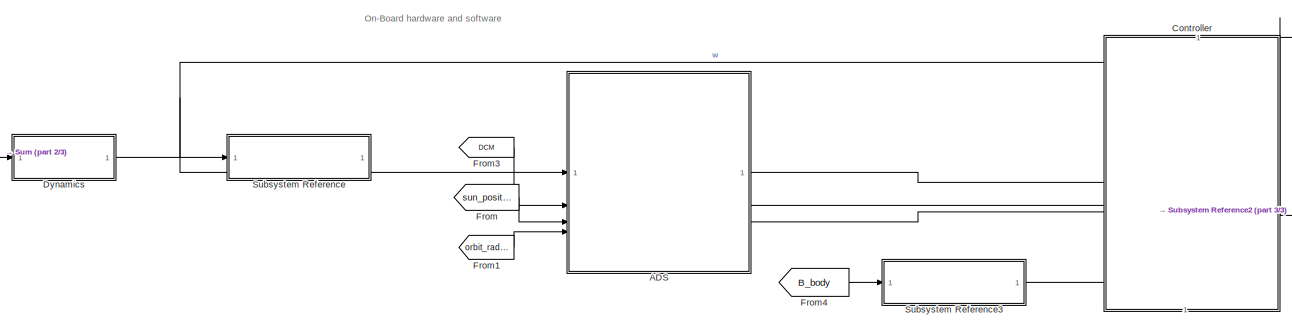
[diagram: root canvas - part 1/3, center side, full height]
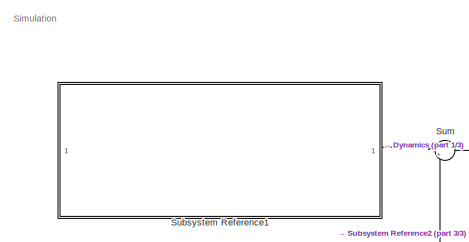
[diagram: root canvas - part 2/3, middle left region]
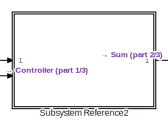
[diagram: root canvas - part 3/3, middle right region]
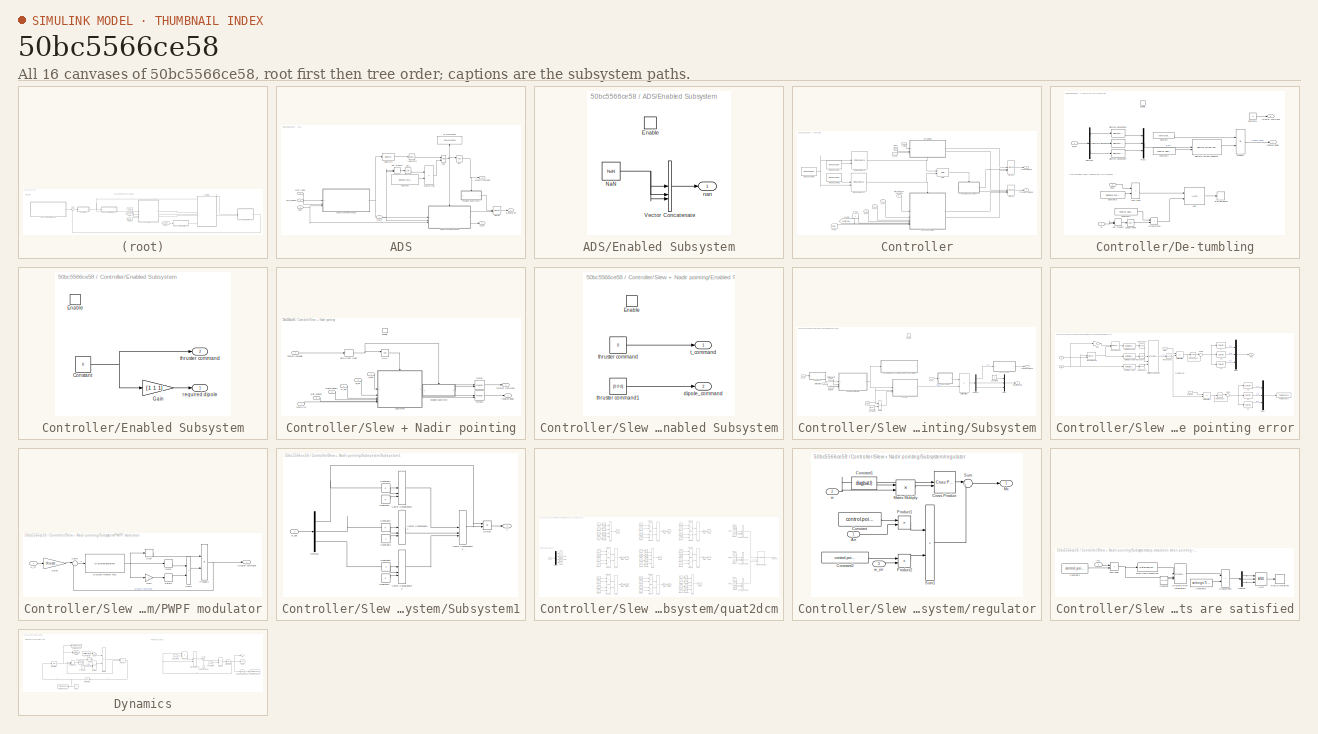
[diagram: thumbnail index - all 16 canvases of the model, root first then tree order]
MODEL slx_50bc5566ce58
KIND model
CONFIG AbsTol = auto
CONFIG EnableMultiTasking = off
CONFIG FixedStep = 0.01
CONFIG MaxStep = auto
CONFIG MinStep = auto
CONFIG RelTol = 1e-3
CONFIG SampleTimeConstraint = Unconstrained
CONFIG SolverName = VariableStepAuto
CONFIG StartTime = 0.0
CONFIG StopTime = Simtime
BLOCK [SubSystem] ADS
  SystemSampleTime = 1/sensors.star.frequency
  TreatAsAtomicUnit = on
BLOCK [Logic] ADS/AND
  AllPortsSameDT = off
  IconShape = distinctive
  OutDataTypeStr = boolean
BLOCK [Constant] ADS/Constant
  Value = sensors.star.reduced_perf_w
BLOCK [Inport] ADS/DCM
  Port = 2
BLOCK [DotProduct] ADS/Dot Product
  OutDataTypeStr = Inherit: Inherit via internal rule
BLOCK [SubSystem] ADS/Enabled Subsystem
  TreatAsAtomicUnit = on
BLOCK [EnablePort] ADS/Enabled Subsystem/Enable
BLOCK [Constant] ADS/Enabled Subsystem/NaN
  OutDataTypeStr = Inherit: Inherit via back propagation
  Value = NaN
BLOCK [Concatenate] ADS/Enabled Subsystem/Vector Concatenate
  NumInputs = 3
BLOCK [Outport] ADS/Enabled Subsystem/nan
BLOCK [RelationalOperator] ADS/GreaterThan
  InputSameDT = off
  Operator = <
  OutDataTypeStr = boolean
  RndMeth = Simplest
BLOCK [Reference] ADS/IsNotZero  REF=simulink/Logic and Bit
Operations/Compare
To Zero
  LibrarySourceBlock = simulink/Quick Insert/Logic and Bit\nOperations/IsZero
  NameLocation = top
  SourceBlock = simulink/Logic and Bit\nOperations/Compare\nTo Zero
  SourceType = Compare To Zero
BLOCK [Merge] ADS/Merge
BLOCK [Logic] ADS/NOT
  AllPortsSameDT = off
  IconShape = distinctive
  Operator = NOT
  OutDataTypeStr = boolean
BLOCK [Selector] ADS/Selector2
  IndexOptions = Index vector (dialog),Index vector (dialog)
  Indices = 1,1
  InputPortWidth = 9
  NumberOfDimensions = 2
  OutputSizes = 1,1
BLOCK [Sqrt] ADS/Sqrt
BLOCK [SubSystem] ADS/Subsystem Reference
  ReferencedSubsystem = Attitude_Determination
BLOCK [SubSystem] ADS/Subsystem Reference2
  ReferencedSubsystem = Choose_starTracker
BLOCK [Inport] ADS/Sun_position
  Port = 3
BLOCK [ToWorkspace] ADS/To Workspace
  FixptAsFi = on
  MaxDataPoints = inf
  NameLocation = right
  SampleTime = -1
  SaveFormat = Timeseries
  VariableName = sensors_status
BLOCK [Inport] ADS/orbit radius
  Port = 4
BLOCK [Outport] ADS/q_est
  Port = 2
BLOCK [Inport] ADS/real_w
BLOCK [Outport] ADS/sensors unusable
  Port = 3
BLOCK [Outport] ADS/w_measured
BLOCK [SubSystem] Controller
  NameLocation = top
  PortSchema = {"entries":[{"content":{"sides":[{"content":{"connectorIds":[]},"type":"ConnectorPlacement.EquallySpacedRectSide","uuid":"b9f306a8-2adc-4fdf-9d44-92990535016c"},{"content":{"connectorIds":[],"side":"RIGHT"},"type":"ConnectorPlacement.EquallySpacedRectSide","uuid":"ea1ad8ad-5997-4d6b-bfe5-c01ec1c38360"},{"content":{"connectorIds":["In1","In2","In3","In4","In5"],"side":"TOP"},"type":"ConnectorPlacem...<+415ch>
BLOCK [Inport] Controller/B_est
BLOCK [InportShadow] Controller/B_est1
BLOCK [Clock] Controller/Clock
BLOCK [SubSystem] Controller/De-tumbling
  NameLocation = top
  TreatAsAtomicUnit = on
BLOCK [Logic] Controller/De-tumbling/AND
  AllPortsSameDT = off
  IconShape = distinctive
  OutDataTypeStr = boolean
BLOCK [Inport] Controller/De-tumbling/B_est
  Port = 3
BLOCK [Constant] Controller/De-tumbling/Constant
  Value = -control.bdot_gain
BLOCK [Constant] Controller/De-tumbling/Constant1
  Value = 0
BLOCK [Constant] Controller/De-tumbling/Constant2
  SampleTime = -1
  Value = control.bdot_filter
BLOCK [Constant] Controller/De-tumbling/Constant3
  Value = sensors.star.startup
BLOCK [Constant] Controller/De-tumbling/Constant4
  Value = control.bdot_end
BLOCK [Demux] Controller/De-tumbling/Demux5
  Outputs = 3
BLOCK [Reference] Controller/De-tumbling/Discrete Derivative2  REF=simulink/Discrete/Discrete Derivative
  SourceBlock = simulink/Discrete/Discrete Derivative
  SourceType = Discrete Derivative
BLOCK [Reference] Controller/De-tumbling/Discrete Derivative3  REF=simulink/Discrete/Discrete Derivative
  SourceBlock = simulink/Discrete/Discrete Derivative
  SourceType = Discrete Derivative
BLOCK [Reference] Controller/De-tumbling/Discrete Derivative4  REF=simulink/Discrete/Discrete Derivative
  SourceBlock = simulink/Discrete/Discrete Derivative
  SourceType = Discrete Derivative
BLOCK [Reference] Controller/De-tumbling/Discrete Varying Lowpass1  REF=cstblocks/Linear Parameter Varying/Discrete Varying Lowpass
  SourceBlock = cstblocks/Linear Parameter Varying/Discrete Varying Lowpass
  SourceType = Discrete Varying Lowpass
BLOCK [DotProduct] Controller/De-tumbling/Dot Product
  OutDataTypeStr = Inherit: Inherit via internal rule
BLOCK [EnablePort] Controller/De-tumbling/Enable
BLOCK [RelationalOperator] Controller/De-tumbling/GreaterThan
  InputSameDT = off
  Operator = >
  OutDataTypeStr = boolean
  RndMeth = Simplest
BLOCK [RelationalOperator] Controller/De-tumbling/Less Than
  InputSameDT = off
  Operator = >
  OutDataTypeStr = boolean
  RndMeth = Simplest
BLOCK [Mux] Controller/De-tumbling/Mux1
  DisplayOption = bar
  Inputs = 3
BLOCK [Product] Controller/De-tumbling/Product
BLOCK [Sqrt] Controller/De-tumbling/Square Root
BLOCK [Stop] Controller/De-tumbling/Stop Simulation
BLOCK [Inport] Controller/De-tumbling/clock
  Port = 2
BLOCK [Outport] Controller/De-tumbling/required dipole
BLOCK [Outport] Controller/De-tumbling/thruster command
  Port = 2
BLOCK [Inport] Controller/De-tumbling/w
BLOCK [SubSystem] Controller/Enabled Subsystem
  TreatAsAtomicUnit = on
BLOCK [Constant] Controller/Enabled Subsystem/Constant
  Value = 0
BLOCK [EnablePort] Controller/Enabled Subsystem/Enable
BLOCK [Gain] Controller/Enabled Subsystem/Gain
  Gain = [1 1 1]
BLOCK [Outport] Controller/Enabled Subsystem/required dipole
BLOCK [Outport] Controller/Enabled Subsystem/thruster command
  Port = 2
BLOCK [From] Controller/From
  GotoTag = DCM
  TagVisibility = global
BLOCK [From] Controller/From2
  GotoTag = v
  TagVisibility = global
BLOCK [From] Controller/From3
  GotoTag = orbit_radius
  TagVisibility = global
BLOCK [Merge] Controller/Merge
  Inputs = 3
BLOCK [Merge] Controller/Merge1
  Inputs = 3
BLOCK [Logic] Controller/NOR
  AllPortsSameDT = off
  IconShape = distinctive
  Operator = NOR
  OutDataTypeStr = boolean
BLOCK [SubSystem] Controller/Slew + Nadir pointing
BLOCK [Inport] Controller/Slew + Nadir pointing/B_est
  Port = 3
BLOCK [EnablePort] Controller/Slew + Nadir pointing/Enable
BLOCK [SubSystem] Controller/Slew + Nadir pointing/Enabled Subsystem
  TreatAsAtomicUnit = on
BLOCK [EnablePort] Controller/Slew + Nadir pointing/Enabled Subsystem/Enable
BLOCK [Outport] Controller/Slew + Nadir pointing/Enabled Subsystem/dipole_command
  Port = 2
BLOCK [Outport] Controller/Slew + Nadir pointing/Enabled Subsystem/t_command
BLOCK [Constant] Controller/Slew + Nadir pointing/Enabled Subsystem/thruster command
  Value = 0
BLOCK [Constant] Controller/Slew + Nadir pointing/Enabled Subsystem/thruster command1
  Value = [0 0 0]
BLOCK [Merge] Controller/Slew + Nadir pointing/Merge
BLOCK [Merge] Controller/Slew + Nadir pointing/Merge1
BLOCK [Logic] Controller/Slew + Nadir pointing/NOT
  AllPortsSameDT = off
  IconShape = distinctive
  Operator = NOT
  OutDataTypeStr = boolean
BLOCK [SubSystem] Controller/Slew + Nadir pointing/Subsystem
BLOCK [Outport] Controller/Slew + Nadir pointing/Subsystem/Actuator command
BLOCK [Inport] Controller/Slew + Nadir pointing/Subsystem/B_est
  Port = 2
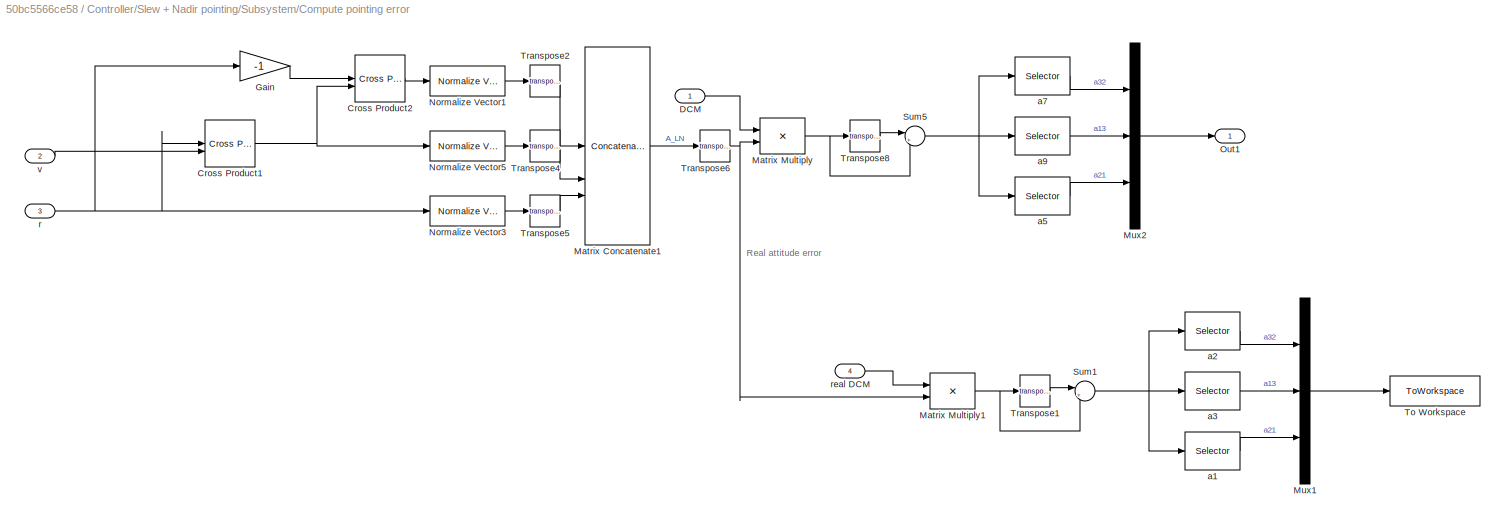
BLOCK [SubSystem] Controller/Slew + Nadir pointing/Subsystem/Compute pointing error
  SystemSampleTime = 1/control.frequency
  TreatAsAtomicUnit = on
BLOCK [Reference] Controller/Slew + Nadir pointing/Subsystem/Compute pointing error/Cross Product1  REF=matrix_library/Cross Product
  LibrarySourceBlock = simulink/Matrix\nOperations/Cross Product
  SourceBlock = matrix_library/Cross Product
  SourceType = CrossProduct
BLOCK [Reference] Controller/Slew + Nadir pointing/Subsystem/Compute pointing error/Cross Product2  REF=matrix_library/Cross Product
  LibrarySourceBlock = simulink/Matrix\nOperations/Cross Product
  SourceBlock = matrix_library/Cross Product
  SourceType = CrossProduct
BLOCK [Inport] Controller/Slew + Nadir pointing/Subsystem/Compute pointing error/DCM
  NameLocation = top
BLOCK [Gain] Controller/Slew + Nadir pointing/Subsystem/Compute pointing error/Gain
  Gain = -1
BLOCK [Concatenate] Controller/Slew + Nadir pointing/Subsystem/Compute pointing error/Matrix Concatenate1
  Mode = Multidimensional array
  NumInputs = 3
BLOCK [Product] Controller/Slew + Nadir pointing/Subsystem/Compute pointing error/Matrix Multiply
  Multiplication = Matrix(*)
BLOCK [Product] Controller/Slew + Nadir pointing/Subsystem/Compute pointing error/Matrix Multiply1
  Multiplication = Matrix(*)
BLOCK [Mux] Controller/Slew + Nadir pointing/Subsystem/Compute pointing error/Mux1
  DisplayOption = bar
  Inputs = 3
BLOCK [Mux] Controller/Slew + Nadir pointing/Subsystem/Compute pointing error/Mux2
  DisplayOption = bar
  Inputs = 3
BLOCK [Reference] Controller/Slew + Nadir pointing/Subsystem/Compute pointing error/Normalize Vector1  REF=vrlib/Utilities/Normalize Vector
  SourceBlock = vrlib/Utilities/Normalize Vector
  SourceType = Normalize Vector
BLOCK [Reference] Controller/Slew + Nadir pointing/Subsystem/Compute pointing error/Normalize Vector3  REF=vrlib/Utilities/Normalize Vector
  SourceBlock = vrlib/Utilities/Normalize Vector
  SourceType = Normalize Vector
BLOCK [Reference] Controller/Slew + Nadir pointing/Subsystem/Compute pointing error/Normalize Vector5  REF=vrlib/Utilities/Normalize Vector
  SourceBlock = vrlib/Utilities/Normalize Vector
  SourceType = Normalize Vector
BLOCK [Outport] Controller/Slew + Nadir pointing/Subsystem/Compute pointing error/Out1
BLOCK [Sum] Controller/Slew + Nadir pointing/Subsystem/Compute pointing error/Sum1
  Inputs = |+-
BLOCK [Sum] Controller/Slew + Nadir pointing/Subsystem/Compute pointing error/Sum5
  Inputs = |+-
BLOCK [ToWorkspace] Controller/Slew + Nadir pointing/Subsystem/Compute pointing error/To Workspace
  FixptAsFi = on
  MaxDataPoints = inf
  SampleTime = -1
  Save2DSignal = 2-D array (concatenate along first dimension)
  SaveFormat = Timeseries
  VariableName = Pointing_error
BLOCK [Math] Controller/Slew + Nadir pointing/Subsystem/Compute pointing error/Transpose1
  Operator = transpose
BLOCK [Math] Controller/Slew + Nadir pointing/Subsystem/Compute pointing error/Transpose2
  Operator = transpose
BLOCK [Math] Controller/Slew + Nadir pointing/Subsystem/Compute pointing error/Transpose4
  Operator = transpose
BLOCK [Math] Controller/Slew + Nadir pointing/Subsystem/Compute pointing error/Transpose5
  Operator = transpose
BLOCK [Math] Controller/Slew + Nadir pointing/Subsystem/Compute pointing error/Transpose6
  Operator = transpose
BLOCK [Math] Controller/Slew + Nadir pointing/Subsystem/Compute pointing error/Transpose8
  Operator = transpose
BLOCK [Selector] Controller/Slew + Nadir pointing/Subsystem/Compute pointing error/a1
  IndexOptions = Index vector (dialog),Index vector (dialog)
  Indices = 2,1
  InputPortWidth = 3
  NumberOfDimensions = 2
  OutputSizes = 1,1
BLOCK [Selector] Controller/Slew + Nadir pointing/Subsystem/Compute pointing error/a2
  IndexOptions = Index vector (dialog),Index vector (dialog)
  Indices = 3,2
  InputPortWidth = 3
  NumberOfDimensions = 2
  OutputSizes = 1,1
BLOCK [Selector] Controller/Slew + Nadir pointing/Subsystem/Compute pointing error/a3
  IndexOptions = Index vector (dialog),Index vector (dialog)
  Indices = 1,3
  InputPortWidth = 3
  NumberOfDimensions = 2
  OutputSizes = 1,1
BLOCK [Selector] Controller/Slew + Nadir pointing/Subsystem/Compute pointing error/a5
  IndexOptions = Index vector (dialog),Index vector (dialog)
  Indices = 2,1
  InputPortWidth = 3
  NumberOfDimensions = 2
  OutputSizes = 1,1
BLOCK [Selector] Controller/Slew + Nadir pointing/Subsystem/Compute pointing error/a7
  IndexOptions = Index vector (dialog),Index vector (dialog)
  Indices = 3,2
  InputPortWidth = 3
  NumberOfDimensions = 2
  OutputSizes = 1,1
BLOCK [Selector] Controller/Slew + Nadir pointing/Subsystem/Compute pointing error/a9
  IndexOptions = Index vector (dialog),Index vector (dialog)
  Indices = 1,3
  InputPortWidth = 3
  NumberOfDimensions = 2
  OutputSizes = 1,1
BLOCK [Inport] Controller/Slew + Nadir pointing/Subsystem/Compute pointing error/r
  Port = 3
BLOCK [Inport] Controller/Slew + Nadir pointing/Subsystem/Compute pointing error/real DCM
  Port = 4
BLOCK [Inport] Controller/Slew + Nadir pointing/Subsystem/Compute pointing error/v
  Port = 2
BLOCK [Constant] Controller/Slew + Nadir pointing/Subsystem/Constant2
  Value = 0
BLOCK [Constant] Controller/Slew + Nadir pointing/Subsystem/Constant3
  Value = [0 n 0]
BLOCK [Demux] Controller/Slew + Nadir pointing/Subsystem/Demux2
  Outputs = 3
BLOCK [EnablePort] Controller/Slew + Nadir pointing/Subsystem/Enable
BLOCK [Product] Controller/Slew + Nadir pointing/Subsystem/Matrix Multiply1
  Multiplication = Matrix(*)
BLOCK [Mux] Controller/Slew + Nadir pointing/Subsystem/Mux1
  DisplayOption = bar
  Inputs = 3
BLOCK [SubSystem] Controller/Slew + Nadir pointing/Subsystem/PWPF modulator
  SystemSampleTime = 1/control.frequency
  TreatAsAtomicUnit = on
BLOCK [Outport] Controller/Slew + Nadir pointing/Subsystem/PWPF modulator/Actuator command
BLOCK [DiscreteTransferFcn] Controller/Slew + Nadir pointing/Subsystem/PWPF modulator/Discrete Transfer Fcn2
  Denominator = [thruster.T_m 1]
  InputPortMap = u0
  Numerator = thruster.K_m
  SampleTime = 0.05
BLOCK [Gain] Controller/Slew + Nadir pointing/Subsystem/PWPF modulator/Gain
  Gain = -1
BLOCK [Gain] Controller/Slew + Nadir pointing/Subsystem/PWPF modulator/Gain5
  Gain = thruster.K_e
BLOCK [Product] Controller/Slew + Nadir pointing/Subsystem/PWPF modulator/Product1
BLOCK [Relay] Controller/Slew + Nadir pointing/Subsystem/PWPF modulator/Relay
  OffSwitchValue = thruster.Uoff
  OnSwitchValue = thruster.Uon
BLOCK [Relay] Controller/Slew + Nadir pointing/Subsystem/PWPF modulator/Relay1
  OffSwitchValue = thruster.Uoff
  OnSwitchValue = thruster.Uon
BLOCK [Signum] Controller/Slew + Nadir pointing/Subsystem/PWPF modulator/Sign
BLOCK [Sum] Controller/Slew + Nadir pointing/Subsystem/PWPF modulator/Sum3
  IconShape = rectangular
BLOCK [Sum] Controller/Slew + Nadir pointing/Subsystem/PWPF modulator/Sum4
  Inputs = |+-
BLOCK [Inport] Controller/Slew + Nadir pointing/Subsystem/PWPF modulator/U_in
BLOCK [SubSystem] Controller/Slew + Nadir pointing/Subsystem/Subsystem1
  SystemSampleTime = 1/control.frequency
  TreatAsAtomicUnit = on
BLOCK [Outport] Controller/Slew + Nadir pointing/Subsystem/Subsystem1/A
BLOCK [Inport] Controller/Slew + Nadir pointing/Subsystem/Subsystem1/B_est
BLOCK [Constant] Controller/Slew + Nadir pointing/Subsystem/Subsystem1/Constant1
  Value = 0
BLOCK [Constant] Controller/Slew + Nadir pointing/Subsystem/Subsystem1/Constant2
  Value = 0
BLOCK [Constant] Controller/Slew + Nadir pointing/Subsystem/Subsystem1/Constant3
BLOCK [Constant] Controller/Slew + Nadir pointing/Subsystem/Subsystem1/Constant4
  Value = 0
BLOCK [Constant] Controller/Slew + Nadir pointing/Subsystem/Subsystem1/Constant5
  Value = -1
BLOCK [Constant] Controller/Slew + Nadir pointing/Subsystem/Subsystem1/Constant6
  Value = 0
BLOCK [Demux] Controller/Slew + Nadir pointing/Subsystem/Subsystem1/Demux2
  Outputs = 3
BLOCK [Product] Controller/Slew + Nadir pointing/Subsystem/Subsystem1/Divide
  Inputs = /*
BLOCK [Concatenate] Controller/Slew + Nadir pointing/Subsystem/Subsystem1/Vector Concatenate1
  Mode = Multidimensional array
  NumInputs = 3
BLOCK [Concatenate] Controller/Slew + Nadir pointing/Subsystem/Subsystem1/Vector Concatenate2
  Mode = Multidimensional array
  NumInputs = 3
BLOCK [Concatenate] Controller/Slew + Nadir pointing/Subsystem/Subsystem1/Vector Concatenate3
  ConcatenateDimension = 2
  Mode = Multidimensional array
  NumInputs = 3
BLOCK [Concatenate] Controller/Slew + Nadir pointing/Subsystem/Subsystem1/Vector Concatenate4
  Mode = Multidimensional array
  NumInputs = 3
BLOCK [Sum] Controller/Slew + Nadir pointing/Subsystem/Sum2
  IconShape = rectangular
  Inputs = -+
BLOCK [Inport] Controller/Slew + Nadir pointing/Subsystem/orbit position
  Port = 5
BLOCK [Inport] Controller/Slew + Nadir pointing/Subsystem/orbital velocity
  Port = 4
BLOCK [Inport] Controller/Slew + Nadir pointing/Subsystem/q_est
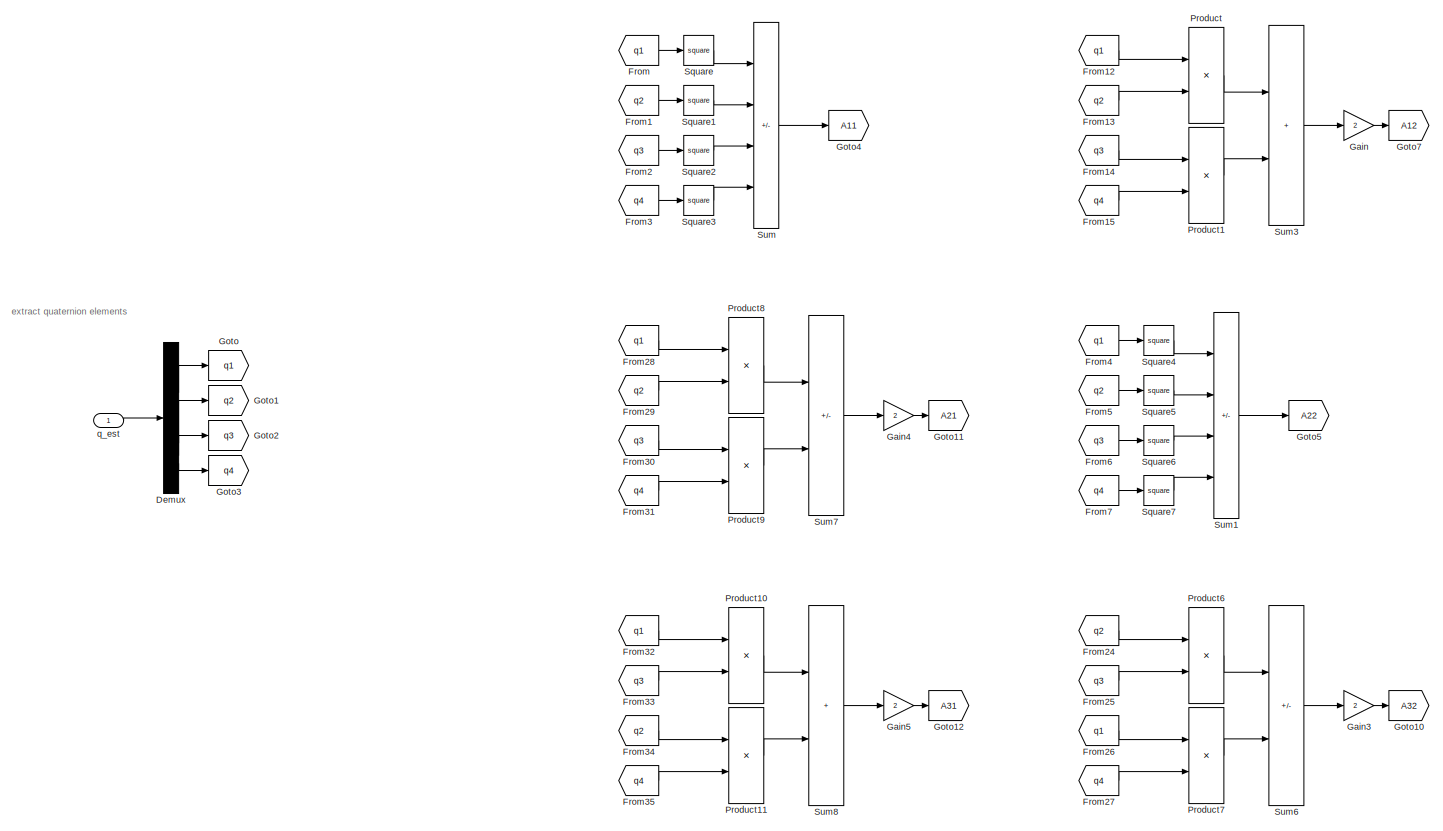
[diagram: Controller/Slew + Nadir pointing/Subsystem/quat2dcm - part 1/2, left side, full height]
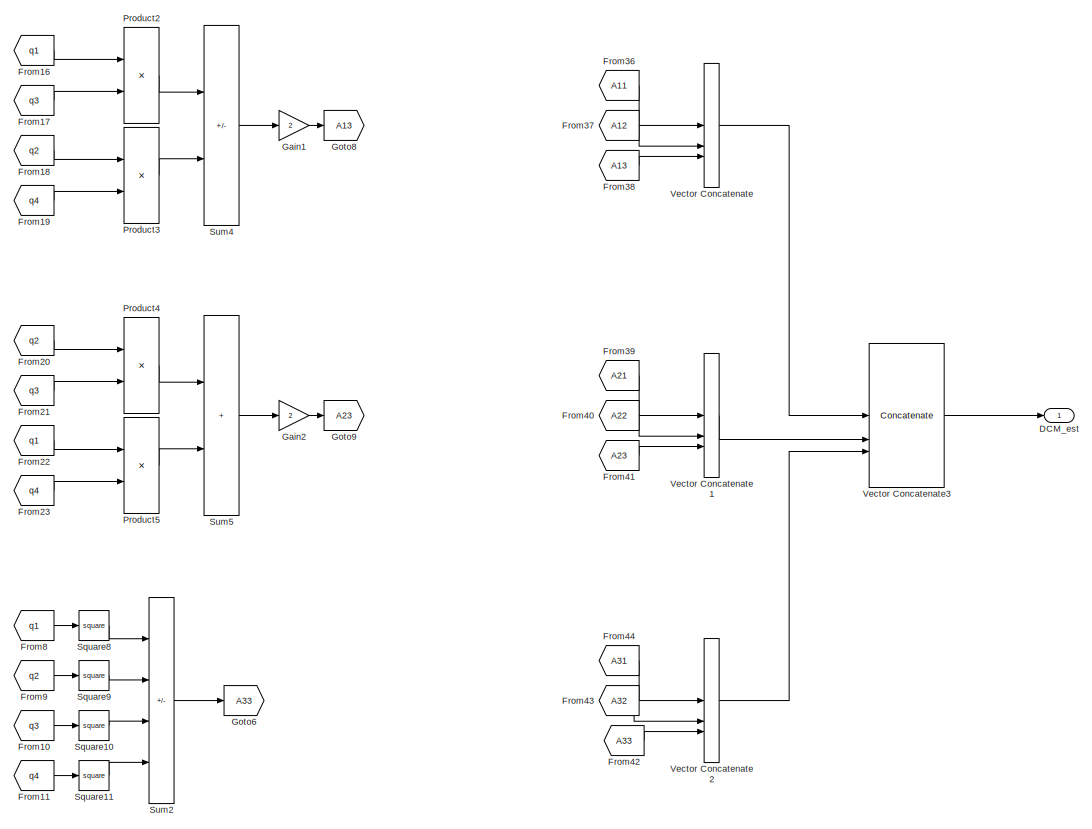
[diagram: Controller/Slew + Nadir pointing/Subsystem/quat2dcm - part 2/2, right side, full height]
BLOCK [SubSystem] Controller/Slew + Nadir pointing/Subsystem/quat2dcm
BLOCK [Outport] Controller/Slew + Nadir pointing/Subsystem/quat2dcm/DCM_est
BLOCK [Demux] Controller/Slew + Nadir pointing/Subsystem/quat2dcm/Demux
BLOCK [From] Controller/Slew + Nadir pointing/Subsystem/quat2dcm/From
  GotoTag = q1
BLOCK [From] Controller/Slew + Nadir pointing/Subsystem/quat2dcm/From1
  GotoTag = q2
BLOCK [From] Controller/Slew + Nadir pointing/Subsystem/quat2dcm/From10
  GotoTag = q3
BLOCK [From] Controller/Slew + Nadir pointing/Subsystem/quat2dcm/From11
  GotoTag = q4
BLOCK [From] Controller/Slew + Nadir pointing/Subsystem/quat2dcm/From12
  GotoTag = q1
BLOCK [From] Controller/Slew + Nadir pointing/Subsystem/quat2dcm/From13
  GotoTag = q2
BLOCK [From] Controller/Slew + Nadir pointing/Subsystem/quat2dcm/From14
  GotoTag = q3
BLOCK [From] Controller/Slew + Nadir pointing/Subsystem/quat2dcm/From15
  GotoTag = q4
BLOCK [From] Controller/Slew + Nadir pointing/Subsystem/quat2dcm/From16
  GotoTag = q1
BLOCK [From] Controller/Slew + Nadir pointing/Subsystem/quat2dcm/From17
  GotoTag = q3
BLOCK [From] Controller/Slew + Nadir pointing/Subsystem/quat2dcm/From18
  GotoTag = q2
BLOCK [From] Controller/Slew + Nadir pointing/Subsystem/quat2dcm/From19
  GotoTag = q4
BLOCK [From] Controller/Slew + Nadir pointing/Subsystem/quat2dcm/From2
  GotoTag = q3
BLOCK [From] Controller/Slew + Nadir pointing/Subsystem/quat2dcm/From20
  GotoTag = q2
BLOCK [From] Controller/Slew + Nadir pointing/Subsystem/quat2dcm/From21
  GotoTag = q3
BLOCK [From] Controller/Slew + Nadir pointing/Subsystem/quat2dcm/From22
  GotoTag = q1
BLOCK [From] Controller/Slew + Nadir pointing/Subsystem/quat2dcm/From23
  GotoTag = q4
BLOCK [From] Controller/Slew + Nadir pointing/Subsystem/quat2dcm/From24
  GotoTag = q2
BLOCK [From] Controller/Slew + Nadir pointing/Subsystem/quat2dcm/From25
  GotoTag = q3
BLOCK [From] Controller/Slew + Nadir pointing/Subsystem/quat2dcm/From26
  GotoTag = q1
BLOCK [From] Controller/Slew + Nadir pointing/Subsystem/quat2dcm/From27
  GotoTag = q4
BLOCK [From] Controller/Slew + Nadir pointing/Subsystem/quat2dcm/From28
  GotoTag = q1
BLOCK [From] Controller/Slew + Nadir pointing/Subsystem/quat2dcm/From29
  GotoTag = q2
BLOCK [From] Controller/Slew + Nadir pointing/Subsystem/quat2dcm/From3
  GotoTag = q4
BLOCK [From] Controller/Slew + Nadir pointing/Subsystem/quat2dcm/From30
  GotoTag = q3
BLOCK [From] Controller/Slew + Nadir pointing/Subsystem/quat2dcm/From31
  GotoTag = q4
BLOCK [From] Controller/Slew + Nadir pointing/Subsystem/quat2dcm/From32
  GotoTag = q1
BLOCK [From] Controller/Slew + Nadir pointing/Subsystem/quat2dcm/From33
  GotoTag = q3
BLOCK [From] Controller/Slew + Nadir pointing/Subsystem/quat2dcm/From34
  GotoTag = q2
BLOCK [From] Controller/Slew + Nadir pointing/Subsystem/quat2dcm/From35
  GotoTag = q4
BLOCK [From] Controller/Slew + Nadir pointing/Subsystem/quat2dcm/From36
  GotoTag = A11
BLOCK [From] Controller/Slew + Nadir pointing/Subsystem/quat2dcm/From37
  GotoTag = A12
BLOCK [From] Controller/Slew + Nadir pointing/Subsystem/quat2dcm/From38
  GotoTag = A13
BLOCK [From] Controller/Slew + Nadir pointing/Subsystem/quat2dcm/From39
  GotoTag = A21
BLOCK [From] Controller/Slew + Nadir pointing/Subsystem/quat2dcm/From4
  GotoTag = q1
BLOCK [From] Controller/Slew + Nadir pointing/Subsystem/quat2dcm/From40
  GotoTag = A22
BLOCK [From] Controller/Slew + Nadir pointing/Subsystem/quat2dcm/From41
  GotoTag = A23
BLOCK [From] Controller/Slew + Nadir pointing/Subsystem/quat2dcm/From42
  GotoTag = A33
BLOCK [From] Controller/Slew + Nadir pointing/Subsystem/quat2dcm/From43
  GotoTag = A32
BLOCK [From] Controller/Slew + Nadir pointing/Subsystem/quat2dcm/From44
  GotoTag = A31
BLOCK [From] Controller/Slew + Nadir pointing/Subsystem/quat2dcm/From5
  GotoTag = q2
BLOCK [From] Controller/Slew + Nadir pointing/Subsystem/quat2dcm/From6
  GotoTag = q3
BLOCK [From] Controller/Slew + Nadir pointing/Subsystem/quat2dcm/From7
  GotoTag = q4
BLOCK [From] Controller/Slew + Nadir pointing/Subsystem/quat2dcm/From8
  GotoTag = q1
BLOCK [From] Controller/Slew + Nadir pointing/Subsystem/quat2dcm/From9
  GotoTag = q2
BLOCK [Gain] Controller/Slew + Nadir pointing/Subsystem/quat2dcm/Gain
  Gain = 2
BLOCK [Gain] Controller/Slew + Nadir pointing/Subsystem/quat2dcm/Gain1
  Gain = 2
BLOCK [Gain] Controller/Slew + Nadir pointing/Subsystem/quat2dcm/Gain2
  Gain = 2
BLOCK [Gain] Controller/Slew + Nadir pointing/Subsystem/quat2dcm/Gain3
  Gain = 2
BLOCK [Gain] Controller/Slew + Nadir pointing/Subsystem/quat2dcm/Gain4
  Gain = 2
BLOCK [Gain] Controller/Slew + Nadir pointing/Subsystem/quat2dcm/Gain5
  Gain = 2
BLOCK [Goto] Controller/Slew + Nadir pointing/Subsystem/quat2dcm/Goto
  GotoTag = q1
BLOCK [Goto] Controller/Slew + Nadir pointing/Subsystem/quat2dcm/Goto1
  GotoTag = q2
BLOCK [Goto] Controller/Slew + Nadir pointing/Subsystem/quat2dcm/Goto10
  GotoTag = A32
BLOCK [Goto] Controller/Slew + Nadir pointing/Subsystem/quat2dcm/Goto11
  GotoTag = A21
BLOCK [Goto] Controller/Slew + Nadir pointing/Subsystem/quat2dcm/Goto12
  GotoTag = A31
BLOCK [Goto] Controller/Slew + Nadir pointing/Subsystem/quat2dcm/Goto2
  GotoTag = q3
BLOCK [Goto] Controller/Slew + Nadir pointing/Subsystem/quat2dcm/Goto3
  GotoTag = q4
BLOCK [Goto] Controller/Slew + Nadir pointing/Subsystem/quat2dcm/Goto4
  GotoTag = A11
BLOCK [Goto] Controller/Slew + Nadir pointing/Subsystem/quat2dcm/Goto5
  GotoTag = A22
BLOCK [Goto] Controller/Slew + Nadir pointing/Subsystem/quat2dcm/Goto6
  GotoTag = A33
BLOCK [Goto] Controller/Slew + Nadir pointing/Subsystem/quat2dcm/Goto7
  GotoTag = A12
BLOCK [Goto] Controller/Slew + Nadir pointing/Subsystem/quat2dcm/Goto8
  GotoTag = A13
BLOCK [Goto] Controller/Slew + Nadir pointing/Subsystem/quat2dcm/Goto9
  GotoTag = A23
BLOCK [Product] Controller/Slew + Nadir pointing/Subsystem/quat2dcm/Product
BLOCK [Product] Controller/Slew + Nadir pointing/Subsystem/quat2dcm/Product1
BLOCK [Product] Controller/Slew + Nadir pointing/Subsystem/quat2dcm/Product10
BLOCK [Product] Controller/Slew + Nadir pointing/Subsystem/quat2dcm/Product11
BLOCK [Product] Controller/Slew + Nadir pointing/Subsystem/quat2dcm/Product2
BLOCK [Product] Controller/Slew + Nadir pointing/Subsystem/quat2dcm/Product3
BLOCK [Product] Controller/Slew + Nadir pointing/Subsystem/quat2dcm/Product4
BLOCK [Product] Controller/Slew + Nadir pointing/Subsystem/quat2dcm/Product5
BLOCK [Product] Controller/Slew + Nadir pointing/Subsystem/quat2dcm/Product6
BLOCK [Product] Controller/Slew + Nadir pointing/Subsystem/quat2dcm/Product7
BLOCK [Product] Controller/Slew + Nadir pointing/Subsystem/quat2dcm/Product8
BLOCK [Product] Controller/Slew + Nadir pointing/Subsystem/quat2dcm/Product9
BLOCK [Math] Controller/Slew + Nadir pointing/Subsystem/quat2dcm/Square
  Operator = square
BLOCK [Math] Controller/Slew + Nadir pointing/Subsystem/quat2dcm/Square1
  Operator = square
BLOCK [Math] Controller/Slew + Nadir pointing/Subsystem/quat2dcm/Square10
  Operator = square
BLOCK [Math] Controller/Slew + Nadir pointing/Subsystem/quat2dcm/Square11
  Operator = square
BLOCK [Math] Controller/Slew + Nadir pointing/Subsystem/quat2dcm/Square2
  Operator = square
BLOCK [Math] Controller/Slew + Nadir pointing/Subsystem/quat2dcm/Square3
  Operator = square
BLOCK [Math] Controller/Slew + Nadir pointing/Subsystem/quat2dcm/Square4
  Operator = square
BLOCK [Math] Controller/Slew + Nadir pointing/Subsystem/quat2dcm/Square5
  Operator = square
BLOCK [Math] Controller/Slew + Nadir pointing/Subsystem/quat2dcm/Square6
  Operator = square
BLOCK [Math] Controller/Slew + Nadir pointing/Subsystem/quat2dcm/Square7
  Operator = square
BLOCK [Math] Controller/Slew + Nadir pointing/Subsystem/quat2dcm/Square8
  Operator = square
BLOCK [Math] Controller/Slew + Nadir pointing/Subsystem/quat2dcm/Square9
  Operator = square
BLOCK [Sum] Controller/Slew + Nadir pointing/Subsystem/quat2dcm/Sum
  IconShape = rectangular
  Inputs = +--+
BLOCK [Sum] Controller/Slew + Nadir pointing/Subsystem/quat2dcm/Sum1
  IconShape = rectangular
  Inputs = -+-+
BLOCK [Sum] Controller/Slew + Nadir pointing/Subsystem/quat2dcm/Sum2
  IconShape = rectangular
  Inputs = --++
BLOCK [Sum] Controller/Slew + Nadir pointing/Subsystem/quat2dcm/Sum3
  IconShape = rectangular
BLOCK [Sum] Controller/Slew + Nadir pointing/Subsystem/quat2dcm/Sum4
  IconShape = rectangular
  Inputs = +-
BLOCK [Sum] Controller/Slew + Nadir pointing/Subsystem/quat2dcm/Sum5
  IconShape = rectangular
BLOCK [Sum] Controller/Slew + Nadir pointing/Subsystem/quat2dcm/Sum6
  IconShape = rectangular
  Inputs = +-
BLOCK [Sum] Controller/Slew + Nadir pointing/Subsystem/quat2dcm/Sum7
  IconShape = rectangular
  Inputs = +-
BLOCK [Sum] Controller/Slew + Nadir pointing/Subsystem/quat2dcm/Sum8
  IconShape = rectangular
BLOCK [Concatenate] Controller/Slew + Nadir pointing/Subsystem/quat2dcm/Vector Concatenate
  ConcatenateDimension = 2
  Mode = Multidimensional array
  NumInputs = 3
BLOCK [Concatenate] Controller/Slew + Nadir pointing/Subsystem/quat2dcm/Vector Concatenate1
  ConcatenateDimension = 2
  Mode = Multidimensional array
  NumInputs = 3
BLOCK [Concatenate] Controller/Slew + Nadir pointing/Subsystem/quat2dcm/Vector Concatenate2
  ConcatenateDimension = 2
  Mode = Multidimensional array
  NumInputs = 3
BLOCK [Concatenate] Controller/Slew + Nadir pointing/Subsystem/quat2dcm/Vector Concatenate3
  Mode = Multidimensional array
  NumInputs = 3
BLOCK [Inport] Controller/Slew + Nadir pointing/Subsystem/quat2dcm/q_est
BLOCK [Inport] Controller/Slew + Nadir pointing/Subsystem/real DCM
  Port = 6
BLOCK [SubSystem] Controller/Slew + Nadir pointing/Subsystem/regulator
  SystemSampleTime = 1
  TreatAsAtomicUnit = on
BLOCK [Inport] Controller/Slew + Nadir pointing/Subsystem/regulator/Ae
BLOCK [Constant] Controller/Slew + Nadir pointing/Subsystem/regulator/Constant
  Value = control.pointing_Kp
BLOCK [Constant] Controller/Slew + Nadir pointing/Subsystem/regulator/Constant1
  Value = diag(sat.I)
BLOCK [Constant] Controller/Slew + Nadir pointing/Subsystem/regulator/Constant2
  Value = control.pointing_Kd
BLOCK [Reference] Controller/Slew + Nadir pointing/Subsystem/regulator/Cross Product  REF=matrix_library/Cross Product
  LibrarySourceBlock = simulink/Matrix\nOperations/Cross Product
  SourceBlock = matrix_library/Cross Product
  SourceType = CrossProduct
BLOCK [Product] Controller/Slew + Nadir pointing/Subsystem/regulator/Matrix Multiply
  Multiplication = Matrix(*)
BLOCK [Outport] Controller/Slew + Nadir pointing/Subsystem/regulator/Mc
BLOCK [Product] Controller/Slew + Nadir pointing/Subsystem/regulator/Product1
BLOCK [Product] Controller/Slew + Nadir pointing/Subsystem/regulator/Product2
BLOCK [Sum] Controller/Slew + Nadir pointing/Subsystem/regulator/Sum
  Inputs = |++
BLOCK [Sum] Controller/Slew + Nadir pointing/Subsystem/regulator/Sum1
  IconShape = rectangular
BLOCK [Inport] Controller/Slew + Nadir pointing/Subsystem/regulator/w
  Port = 2
BLOCK [Inport] Controller/Slew + Nadir pointing/Subsystem/regulator/w_err
  Port = 3
BLOCK [Outport] Controller/Slew + Nadir pointing/Subsystem/required dipole
  Port = 2
BLOCK [SubSystem] Controller/Slew + Nadir pointing/Subsystem/stop simulation when pointing requirements are satisfied
  SystemSampleTime = 1/control.frequency
  TreatAsAtomicUnit = on
BLOCK [Logic] Controller/Slew + Nadir pointing/Subsystem/stop simulation when pointing requirements are satisfied/AND
  AllPortsSameDT = off
  IconShape = distinctive
  Inputs = 3
  OutDataTypeStr = boolean
BLOCK [Constant] Controller/Slew + Nadir pointing/Subsystem/stop simulation when pointing requirements are satisfied/Constant
  Value = [0 0 0]
BLOCK [Constant] Controller/Slew + Nadir pointing/Subsystem/stop simulation when pointing requirements are satisfied/Constant1
  Value = settings.Time
BLOCK [Constant] Controller/Slew + Nadir pointing/Subsystem/stop simulation when pointing requirements are satisfied/Constant2
  Value = control.pointing_toll
BLOCK [DataTypeConversion] Controller/Slew + Nadir pointing/Subsystem/stop simulation when pointing requirements are satisfied/Data Type Conversion
  OutDataTypeStr = double
  RndMeth = Floor
  SaturateOnIntegerOverflow = off
BLOCK [Demux] Controller/Slew + Nadir pointing/Subsystem/stop simulation when pointing requirements are satisfied/Demux
  Outputs = 3
BLOCK [DiscreteIntegrator] Controller/Slew + Nadir pointing/Subsystem/stop simulation when pointing requirements are satisfied/Discrete-Time Integrator2
  ExternalReset = either
  ICPrevOutput = DiscIntNeverNeededParam
  ICPrevScaledInput = DiscIntNeverNeededParam
  InitialConditionSetting = Auto
  InitialConditionSource = external
  SampleTime = -1
BLOCK [RelationalOperator] Controller/Slew + Nadir pointing/Subsystem/stop simulation when pointing requirements are satisfied/GreaterThan
  InputSameDT = off
  Operator = >
  OutDataTypeStr = boolean
  RndMeth = Simplest
BLOCK [Inport] Controller/Slew + Nadir pointing/Subsystem/stop simulation when pointing requirements are satisfied/In1
BLOCK [RelationalOperator] Controller/Slew + Nadir pointing/Subsystem/stop simulation when pointing requirements are satisfied/Less Than
  InputSameDT = off
  Operator = <
  OutDataTypeStr = boolean
  RndMeth = Simplest
BLOCK [Stop] Controller/Slew + Nadir pointing/Subsystem/stop simulation when pointing requirements are satisfied/Stop Simulation
BLOCK [Inport] Controller/Slew + Nadir pointing/Subsystem/w_est
  Port = 3
BLOCK [Outport] Controller/Slew + Nadir pointing/Thruster command
BLOCK [ZeroOrderHold] Controller/Slew + Nadir pointing/Zero-Order Hold1
  SampleTime = 1/control.frequency
BLOCK [Inport] Controller/Slew + Nadir pointing/orbit position
  Port = 6
BLOCK [Inport] Controller/Slew + Nadir pointing/orbital velocity
  Port = 5
BLOCK [Inport] Controller/Slew + Nadir pointing/q_est
  Port = 2
BLOCK [Inport] Controller/Slew + Nadir pointing/real DCM
  Port = 7
BLOCK [Outport] Controller/Slew + Nadir pointing/required dipole
  Port = 2
BLOCK [Inport] Controller/Slew + Nadir pointing/sensors unusable
BLOCK [Inport] Controller/Slew + Nadir pointing/w_est
  Port = 4
BLOCK [StringCompare] Controller/String Compare
BLOCK [StringCompare] Controller/String Compare1
BLOCK [StringConstant] Controller/String Constant
  String = 'De-tumbling'
BLOCK [StringConstant] Controller/String Constant1
  String = 'Pointing'
BLOCK [StringConstant] Controller/String Constant2
  String = control.algorithm
BLOCK [Outport] Controller/Thruster command
  Port = 2
BLOCK [Inport] Controller/q_est
  Port = 3
BLOCK [Inport] Controller/real w
  Port = 5
BLOCK [Outport] Controller/required dipole
BLOCK [Inport] Controller/star sensors unusable
  Port = 2
BLOCK [Inport] Controller/w_est
  Port = 4
BLOCK [SubSystem] Dynamics
BLOCK [Constant] Dynamics/Constant
  Value = 3
BLOCK [Constant] Dynamics/Constant1
  Value = settings.mu
BLOCK [Constant] Dynamics/Constant2
  Value = sat.I
BLOCK [Constant] Dynamics/Constant5
  Value = sat.I
BLOCK [Reference] Dynamics/Cross Product  REF=matrix_library/Cross Product
  LibrarySourceBlock = simulink/Matrix\nOperations/Cross Product
  SourceBlock = matrix_library/Cross Product
  SourceType = CrossProduct
BLOCK [Product] Dynamics/Divide
  Inputs = */
BLOCK [Product] Dynamics/Divide1
  Inputs = */
BLOCK [DotProduct] Dynamics/Dot Product
  OutDataTypeStr = Inherit: Inherit via internal rule
BLOCK [Inport] Dynamics/External Torque
  NameLocation = right
BLOCK [Gain] Dynamics/Gain
  Gain = -1
BLOCK [Goto] Dynamics/Goto
  GotoTag = orbit_radius
  TagVisibility = global
BLOCK [Goto] Dynamics/Goto1
  GotoTag = w
  TagVisibility = global
BLOCK [Goto] Dynamics/Goto2
  GotoTag = r_norm
  TagVisibility = global
BLOCK [Goto] Dynamics/Goto3
  GotoTag = v
  TagVisibility = global
BLOCK [Integrator] Dynamics/Integrator
  InitialCondition = r0
BLOCK [Integrator] Dynamics/Integrator1
  InitialCondition = v0
  NameLocation = top
BLOCK [Integrator] Dynamics/Integrator2
  InitialCondition = settings.w0
BLOCK [Math] Dynamics/Power
  Operator = pow
BLOCK [Product] Dynamics/Product
BLOCK [Product] Dynamics/Product6
BLOCK [Reference] Dynamics/Radians to Degrees  REF=simulink_extras/Transformations/Radians
to Degrees
  SourceBlock = simulink_extras/Transformations/Radians\nto Degrees
  SourceType = RadiansToDegrees
BLOCK [Sqrt] Dynamics/Square Root
BLOCK [Sum] Dynamics/Sum
  Inputs = |++
BLOCK [ToWorkspace] Dynamics/To Workspace
  FixptAsFi = on
  MaxDataPoints = inf
  SampleTime = -1
  VariableName = r_N
BLOCK [ToWorkspace] Dynamics/To Workspace1
  FixptAsFi = on
  MaxDataPoints = inf
  SampleTime = -1
  VariableName = w_BN
BLOCK [ToWorkspace] Dynamics/To Workspace2
  FixptAsFi = on
  MaxDataPoints = inf
  NameLocation = top
  SampleTime = -1
  VariableName = v
BLOCK [Outport] Dynamics/w
BLOCK [From] From
  GotoTag = sun_position
  TagVisibility = global
BLOCK [From] From1
  GotoTag = orbit_radius
  TagVisibility = global
BLOCK [From] From3
  GotoTag = DCM
  TagVisibility = global
BLOCK [From] From4
  GotoTag = B_body
  TagVisibility = global
BLOCK [SubSystem] Subsystem Reference
  ReferencedSubsystem = Kinematics
BLOCK [SubSystem] Subsystem Reference1
  ReferencedSubsystem = Enviroment
BLOCK [SubSystem] Subsystem Reference2
  ReferencedSubsystem = actuators
BLOCK [SubSystem] Subsystem Reference3
  ReferencedSubsystem = magnetic_sensor
  SystemSampleTime = 1/sensors.mag.frequency
  TreatAsAtomicUnit = on
BLOCK [Sum] Sum
  Inputs = |++
ANNOTATION (root): On-Board hardware and software
ANNOTATION (root): Simulation
ANNOTATION Controller/De-tumbling: stop simulation when requirements are satisfied
ANNOTATION Controller/Slew + Nadir pointing/Subsystem/Compute pointing error: Real attitude error
ANNOTATION Controller/Slew + Nadir pointing/Subsystem/quat2dcm: extract quaternion elements
ANNOTATION Dynamics: Orbit in Earth-centered inertial system
ANNOTATION Dynamics: Rotational Dynamics
NET ADS/AND:1 -> ADS/NOT:1, ADS/Subsystem Reference:enable, ADS/To Workspace:1
LINE ADS/Constant:1 -> ADS/GreaterThan:2
NET ADS/DCM:1 -> ADS/Subsystem Reference2:3, ADS/Subsystem Reference:3
LINE ADS/Dot Product:1 -> ADS/Sqrt:1
NET ADS/Enabled Subsystem/NaN:1 -> ADS/Enabled Subsystem/Vector Concatenate:1, ADS/Enabled Subsystem/Vector Concatenate:2, ADS/Enabled Subsystem/Vector Concatenate:3
LINE ADS/Enabled Subsystem/Vector Concatenate:1 -> ADS/Enabled Subsystem/nan:1
LINE ADS/Enabled Subsystem:1 -> ADS/Merge:1
LINE ADS/GreaterThan:1 -> ADS/AND:2
LINE ADS/IsNotZero:1 -> ADS/AND:1
LINE ADS/Merge:1 -> ADS/w_measured:1
NET ADS/NOT:1 -> ADS/Enabled Subsystem:enable, ADS/sensors unusable:1
LINE ADS/Selector2:1 -> ADS/IsNotZero:1
LINE ADS/Sqrt:1 -> ADS/GreaterThan:1
NET ADS/Subsystem Reference2:1 -> ADS/Selector2:1, ADS/Subsystem Reference:1
LINE ADS/Subsystem Reference:1 -> ADS/Merge:2
LINE ADS/Subsystem Reference:2 -> ADS/q_est:1
LINE ADS/Sun_position:1 -> ADS/Subsystem Reference2:2
LINE ADS/orbit radius:1 -> ADS/Subsystem Reference2:1
NET ADS/real_w:1 -> ADS/Dot Product:1, ADS/Dot Product:2, ADS/Subsystem Reference:2
LINE ADS:1 -> Controller:4
LINE ADS:2 -> Controller:3
LINE ADS:3 -> Controller:2
LINE Controller/B_est1:1 -> Controller/De-tumbling:3
LINE Controller/B_est:1 -> Controller/Slew + Nadir pointing:3
LINE Controller/Clock:1 -> Controller/De-tumbling:2
LINE Controller/De-tumbling/AND:1 -> Controller/De-tumbling/Stop Simulation:1
LINE Controller/De-tumbling/B_est:1 -> Controller/De-tumbling/Demux5:1
LINE Controller/De-tumbling/Constant1:1 -> Controller/De-tumbling/thruster command:1
LINE Controller/De-tumbling/Constant2:1 -> Controller/De-tumbling/Discrete Varying Lowpass1:2
LINE Controller/De-tumbling/Constant3:1 -> Controller/De-tumbling/Less Than:2
LINE Controller/De-tumbling/Constant4:1 -> Controller/De-tumbling/GreaterThan:1
LINE Controller/De-tumbling/Constant:1 -> Controller/De-tumbling/Product:1
LINE Controller/De-tumbling/Demux5:1 -> Controller/De-tumbling/Discrete Derivative2:1
LINE Controller/De-tumbling/Demux5:2 -> Controller/De-tumbling/Discrete Derivative3:1
LINE Controller/De-tumbling/Demux5:3 -> Controller/De-tumbling/Discrete Derivative4:1
LINE Controller/De-tumbling/Discrete Derivative2:1 -> Controller/De-tumbling/Mux1:1
LINE Controller/De-tumbling/Discrete Derivative3:1 -> Controller/De-tumbling/Mux1:2
LINE Controller/De-tumbling/Discrete Derivative4:1 -> Controller/De-tumbling/Mux1:3
LINE Controller/De-tumbling/Discrete Varying Lowpass1:1 -> Controller/De-tumbling/Product:2
LINE Controller/De-tumbling/Dot Product:1 -> Controller/De-tumbling/Square Root:1
LINE Controller/De-tumbling/GreaterThan:1 -> Controller/De-tumbling/AND:2
LINE Controller/De-tumbling/Less Than:1 -> Controller/De-tumbling/AND:1
LINE Controller/De-tumbling/Mux1:1 -> Controller/De-tumbling/Discrete Varying Lowpass1:1
LINE Controller/De-tumbling/Product:1 -> Controller/De-tumbling/required dipole:1
LINE Controller/De-tumbling/Square Root:1 -> Controller/De-tumbling/GreaterThan:2
LINE Controller/De-tumbling/clock:1 -> Controller/De-tumbling/Less Than:1
NET Controller/De-tumbling/w:1 -> Controller/De-tumbling/Dot Product:1, Controller/De-tumbling/Dot Product:2
LINE Controller/De-tumbling:1 -> Controller/Merge1:1
LINE Controller/De-tumbling:2 -> Controller/Merge:1
NET Controller/Enabled Subsystem/Constant:1 -> Controller/Enabled Subsystem/Gain:1, Controller/Enabled Subsystem/thruster command:1
LINE Controller/Enabled Subsystem/Gain:1 -> Controller/Enabled Subsystem/required dipole:1
LINE Controller/Enabled Subsystem:1 -> Controller/Merge1:2
LINE Controller/Enabled Subsystem:2 -> Controller/Merge:2
LINE Controller/From2:1 -> Controller/Slew + Nadir pointing:5
LINE Controller/From3:1 -> Controller/Slew + Nadir pointing:6
LINE Controller/From:1 -> Controller/Slew + Nadir pointing:7
LINE Controller/Merge1:1 -> Controller/required dipole:1
LINE Controller/Merge:1 -> Controller/Thruster command:1
LINE Controller/NOR:1 -> Controller/Enabled Subsystem:enable
LINE Controller/Slew + Nadir pointing/B_est:1 -> Controller/Slew + Nadir pointing/Subsystem:2
LINE Controller/Slew + Nadir pointing/Enabled Subsystem/thruster command1:1 -> Controller/Slew + Nadir pointing/Enabled Subsystem/dipole_command:1
LINE Controller/Slew + Nadir pointing/Enabled Subsystem/thruster command:1 -> Controller/Slew + Nadir pointing/Enabled Subsystem/t_command:1
LINE Controller/Slew + Nadir pointing/Enabled Subsystem:1 -> Controller/Slew + Nadir pointing/Merge:2
LINE Controller/Slew + Nadir pointing/Enabled Subsystem:2 -> Controller/Slew + Nadir pointing/Merge1:1
LINE Controller/Slew + Nadir pointing/Merge1:1 -> Controller/Slew + Nadir pointing/required dipole:1
LINE Controller/Slew + Nadir pointing/Merge:1 -> Controller/Slew + Nadir pointing/Thruster command:1
LINE Controller/Slew + Nadir pointing/NOT:1 -> Controller/Slew + Nadir pointing/Subsystem:enable
LINE Controller/Slew + Nadir pointing/Subsystem/B_est:1 -> Controller/Slew + Nadir pointing/Subsystem/Subsystem1:1
NET Controller/Slew + Nadir pointing/Subsystem/Compute pointing error/Cross Product1:1 -> Controller/Slew + Nadir pointing/Subsystem/Compute pointing error/Cross Product2:2, Controller/Slew + Nadir pointing/Subsystem/Compute pointing error/Normalize Vector5:1
LINE Controller/Slew + Nadir pointing/Subsystem/Compute pointing error/Cross Product2:1 -> Controller/Slew + Nadir pointing/Subsystem/Compute pointing error/Normalize Vector1:1
LINE Controller/Slew + Nadir pointing/Subsystem/Compute pointing error/DCM:1 -> Controller/Slew + Nadir pointing/Subsystem/Compute pointing error/Matrix Multiply:1
LINE Controller/Slew + Nadir pointing/Subsystem/Compute pointing error/Gain:1 -> Controller/Slew + Nadir pointing/Subsystem/Compute pointing error/Cross Product2:1
LINE Controller/Slew + Nadir pointing/Subsystem/Compute pointing error/Matrix Concatenate1:1 -> Controller/Slew + Nadir pointing/Subsystem/Compute pointing error/Transpose6:1
NET Controller/Slew + Nadir pointing/Subsystem/Compute pointing error/Matrix Multiply1:1 -> Controller/Slew + Nadir pointing/Subsystem/Compute pointing error/Sum1:2, Controller/Slew + Nadir pointing/Subsystem/Compute pointing error/Transpose1:1
NET Controller/Slew + Nadir pointing/Subsystem/Compute pointing error/Matrix Multiply:1 -> Controller/Slew + Nadir pointing/Subsystem/Compute pointing error/Sum5:2, Controller/Slew + Nadir pointing/Subsystem/Compute pointing error/Transpose8:1
LINE Controller/Slew + Nadir pointing/Subsystem/Compute pointing error/Mux1:1 -> Controller/Slew + Nadir pointing/Subsystem/Compute pointing error/To Workspace:1
LINE Controller/Slew + Nadir pointing/Subsystem/Compute pointing error/Mux2:1 -> Controller/Slew + Nadir pointing/Subsystem/Compute pointing error/Out1:1
LINE Controller/Slew + Nadir pointing/Subsystem/Compute pointing error/Normalize Vector1:1 -> Controller/Slew + Nadir pointing/Subsystem/Compute pointing error/Transpose2:1
LINE Controller/Slew + Nadir pointing/Subsystem/Compute pointing error/Normalize Vector3:1 -> Controller/Slew + Nadir pointing/Subsystem/Compute pointing error/Transpose5:1
LINE Controller/Slew + Nadir pointing/Subsystem/Compute pointing error/Normalize Vector5:1 -> Controller/Slew + Nadir pointing/Subsystem/Compute pointing error/Transpose4:1
NET Controller/Slew + Nadir pointing/Subsystem/Compute pointing error/Sum1:1 -> Controller/Slew + Nadir pointing/Subsystem/Compute pointing error/a1:1, Controller/Slew + Nadir pointing/Subsystem/Compute pointing error/a2:1, Controller/Slew + Nadir pointing/Subsystem/Compute pointing error/a3:1
NET Controller/Slew + Nadir pointing/Subsystem/Compute pointing error/Sum5:1 -> Controller/Slew + Nadir pointing/Subsystem/Compute pointing error/a5:1, Controller/Slew + Nadir pointing/Subsystem/Compute pointing error/a7:1, Controller/Slew + Nadir pointing/Subsystem/Compute pointing error/a9:1
LINE Controller/Slew + Nadir pointing/Subsystem/Compute pointing error/Transpose1:1 -> Controller/Slew + Nadir pointing/Subsystem/Compute pointing error/Sum1:1
LINE Controller/Slew + Nadir pointing/Subsystem/Compute pointing error/Transpose2:1 -> Controller/Slew + Nadir pointing/Subsystem/Compute pointing error/Matrix Concatenate1:1
LINE Controller/Slew + Nadir pointing/Subsystem/Compute pointing error/Transpose4:1 -> Controller/Slew + Nadir pointing/Subsystem/Compute pointing error/Matrix Concatenate1:2
LINE Controller/Slew + Nadir pointing/Subsystem/Compute pointing error/Transpose5:1 -> Controller/Slew + Nadir pointing/Subsystem/Compute pointing error/Matrix Concatenate1:3
NET Controller/Slew + Nadir pointing/Subsystem/Compute pointing error/Transpose6:1 -> Controller/Slew + Nadir pointing/Subsystem/Compute pointing error/Matrix Multiply1:2, Controller/Slew + Nadir pointing/Subsystem/Compute pointing error/Matrix Multiply:2
LINE Controller/Slew + Nadir pointing/Subsystem/Compute pointing error/Transpose8:1 -> Controller/Slew + Nadir pointing/Subsystem/Compute pointing error/Sum5:1
LINE Controller/Slew + Nadir pointing/Subsystem/Compute pointing error/a1:1 -> Controller/Slew + Nadir pointing/Subsystem/Compute pointing error/Mux1:3
LINE Controller/Slew + Nadir pointing/Subsystem/Compute pointing error/a2:1 -> Controller/Slew + Nadir pointing/Subsystem/Compute pointing error/Mux1:1
LINE Controller/Slew + Nadir pointing/Subsystem/Compute pointing error/a3:1 -> Controller/Slew + Nadir pointing/Subsystem/Compute pointing error/Mux1:2
LINE Controller/Slew + Nadir pointing/Subsystem/Compute pointing error/a5:1 -> Controller/Slew + Nadir pointing/Subsystem/Compute pointing error/Mux2:3
LINE Controller/Slew + Nadir pointing/Subsystem/Compute pointing error/a7:1 -> Controller/Slew + Nadir pointing/Subsystem/Compute pointing error/Mux2:1
LINE Controller/Slew + Nadir pointing/Subsystem/Compute pointing error/a9:1 -> Controller/Slew + Nadir pointing/Subsystem/Compute pointing error/Mux2:2
NET Controller/Slew + Nadir pointing/Subsystem/Compute pointing error/r:1 -> Controller/Slew + Nadir pointing/Subsystem/Compute pointing error/Cross Product1:1, Controller/Slew + Nadir pointing/Subsystem/Compute pointing error/Gain:1, Controller/Slew + Nadir pointing/Subsystem/Compute pointing error/Normalize Vector3:1
LINE Controller/Slew + Nadir pointing/Subsystem/Compute pointing error/real DCM:1 -> Controller/Slew + Nadir pointing/Subsystem/Compute pointing error/Matrix Multiply1:1
LINE Controller/Slew + Nadir pointing/Subsystem/Compute pointing error/v:1 -> Controller/Slew + Nadir pointing/Subsystem/Compute pointing error/Cross Product1:2
NET Controller/Slew + Nadir pointing/Subsystem/Compute pointing error:1 -> Controller/Slew + Nadir pointing/Subsystem/regulator:1, Controller/Slew + Nadir pointing/Subsystem/stop simulation when pointing requirements are satisfied:1
LINE Controller/Slew + Nadir pointing/Subsystem/Constant2:1 -> Controller/Slew + Nadir pointing/Subsystem/Mux1:1
LINE Controller/Slew + Nadir pointing/Subsystem/Constant3:1 -> Controller/Slew + Nadir pointing/Subsystem/Sum2:2
LINE Controller/Slew + Nadir pointing/Subsystem/Demux2:1 -> Controller/Slew + Nadir pointing/Subsystem/PWPF modulator:1
LINE Controller/Slew + Nadir pointing/Subsystem/Demux2:2 -> Controller/Slew + Nadir pointing/Subsystem/Mux1:2
LINE Controller/Slew + Nadir pointing/Subsystem/Demux2:3 -> Controller/Slew + Nadir pointing/Subsystem/Mux1:3
LINE Controller/Slew + Nadir pointing/Subsystem/Matrix Multiply1:1 -> Controller/Slew + Nadir pointing/Subsystem/Demux2:1
LINE Controller/Slew + Nadir pointing/Subsystem/Mux1:1 -> Controller/Slew + Nadir pointing/Subsystem/required dipole:1
NET Controller/Slew + Nadir pointing/Subsystem/PWPF modulator/Discrete Transfer Fcn2:1 -> Controller/Slew + Nadir pointing/Subsystem/PWPF modulator/Gain:1, Controller/Slew + Nadir pointing/Subsystem/PWPF modulator/Relay:1, Controller/Slew + Nadir pointing/Subsystem/PWPF modulator/Sign:1
LINE Controller/Slew + Nadir pointing/Subsystem/PWPF modulator/Gain5:1 -> Controller/Slew + Nadir pointing/Subsystem/PWPF modulator/Sum4:1
LINE Controller/Slew + Nadir pointing/Subsystem/PWPF modulator/Gain:1 -> Controller/Slew + Nadir pointing/Subsystem/PWPF modulator/Relay1:1
NET Controller/Slew + Nadir pointing/Subsystem/PWPF modulator/Product1:1 -> Controller/Slew + Nadir pointing/Subsystem/PWPF modulator/Actuator command:1, Controller/Slew + Nadir pointing/Subsystem/PWPF modulator/Sum4:2
LINE Controller/Slew + Nadir pointing/Subsystem/PWPF modulator/Relay1:1 -> Controller/Slew + Nadir pointing/Subsystem/PWPF modulator/Sum3:2
LINE Controller/Slew + Nadir pointing/Subsystem/PWPF modulator/Relay:1 -> Controller/Slew + Nadir pointing/Subsystem/PWPF modulator/Sum3:1
LINE Controller/Slew + Nadir pointing/Subsystem/PWPF modulator/Sign:1 -> Controller/Slew + Nadir pointing/Subsystem/PWPF modulator/Product1:1
LINE Controller/Slew + Nadir pointing/Subsystem/PWPF modulator/Sum3:1 -> Controller/Slew + Nadir pointing/Subsystem/PWPF modulator/Product1:2
LINE Controller/Slew + Nadir pointing/Subsystem/PWPF modulator/Sum4:1 -> Controller/Slew + Nadir pointing/Subsystem/PWPF modulator/Discrete Transfer Fcn2:1
LINE Controller/Slew + Nadir pointing/Subsystem/PWPF modulator/U_in:1 -> Controller/Slew + Nadir pointing/Subsystem/PWPF modulator/Gain5:1
LINE Controller/Slew + Nadir pointing/Subsystem/PWPF modulator:1 -> Controller/Slew + Nadir pointing/Subsystem/Actuator command:1
LINE Controller/Slew + Nadir pointing/Subsystem/Subsystem1/B_est:1 -> Controller/Slew + Nadir pointing/Subsystem/Subsystem1/Demux2:1
LINE Controller/Slew + Nadir pointing/Subsystem/Subsystem1/Constant1:1 -> Controller/Slew + Nadir pointing/Subsystem/Subsystem1/Vector Concatenate4:2
LINE Controller/Slew + Nadir pointing/Subsystem/Subsystem1/Constant2:1 -> Controller/Slew + Nadir pointing/Subsystem/Subsystem1/Vector Concatenate1:2
LINE Controller/Slew + Nadir pointing/Subsystem/Subsystem1/Constant3:1 -> Controller/Slew + Nadir pointing/Subsystem/Subsystem1/Vector Concatenate1:3
LINE Controller/Slew + Nadir pointing/Subsystem/Subsystem1/Constant4:1 -> Controller/Slew + Nadir pointing/Subsystem/Subsystem1/Vector Concatenate2:3
LINE Controller/Slew + Nadir pointing/Subsystem/Subsystem1/Constant5:1 -> Controller/Slew + Nadir pointing/Subsystem/Subsystem1/Vector Concatenate2:2
LINE Controller/Slew + Nadir pointing/Subsystem/Subsystem1/Constant6:1 -> Controller/Slew + Nadir pointing/Subsystem/Subsystem1/Vector Concatenate4:3
NET Controller/Slew + Nadir pointing/Subsystem/Subsystem1/Demux2:1 -> Controller/Slew + Nadir pointing/Subsystem/Subsystem1/Divide:1, Controller/Slew + Nadir pointing/Subsystem/Subsystem1/Vector Concatenate4:1
LINE Controller/Slew + Nadir pointing/Subsystem/Subsystem1/Demux2:2 -> Controller/Slew + Nadir pointing/Subsystem/Subsystem1/Vector Concatenate1:1
LINE Controller/Slew + Nadir pointing/Subsystem/Subsystem1/Demux2:3 -> Controller/Slew + Nadir pointing/Subsystem/Subsystem1/Vector Concatenate2:1
LINE Controller/Slew + Nadir pointing/Subsystem/Subsystem1/Divide:1 -> Controller/Slew + Nadir pointing/Subsystem/Subsystem1/A:1
LINE Controller/Slew + Nadir pointing/Subsystem/Subsystem1/Vector Concatenate1:1 -> Controller/Slew + Nadir pointing/Subsystem/Subsystem1/Vector Concatenate3:2
LINE Controller/Slew + Nadir pointing/Subsystem/Subsystem1/Vector Concatenate2:1 -> Controller/Slew + Nadir pointing/Subsystem/Subsystem1/Vector Concatenate3:3
LINE Controller/Slew + Nadir pointing/Subsystem/Subsystem1/Vector Concatenate3:1 -> Controller/Slew + Nadir pointing/Subsystem/Subsystem1/Divide:2
LINE Controller/Slew + Nadir pointing/Subsystem/Subsystem1/Vector Concatenate4:1 -> Controller/Slew + Nadir pointing/Subsystem/Subsystem1/Vector Concatenate3:1
LINE Controller/Slew + Nadir pointing/Subsystem/Subsystem1:1 -> Controller/Slew + Nadir pointing/Subsystem/Matrix Multiply1:1
LINE Controller/Slew + Nadir pointing/Subsystem/Sum2:1 -> Controller/Slew + Nadir pointing/Subsystem/regulator:3
LINE Controller/Slew + Nadir pointing/Subsystem/orbit position:1 -> Controller/Slew + Nadir pointing/Subsystem/Compute pointing error:3
LINE Controller/Slew + Nadir pointing/Subsystem/orbital velocity:1 -> Controller/Slew + Nadir pointing/Subsystem/Compute pointing error:2
LINE Controller/Slew + Nadir pointing/Subsystem/q_est:1 -> Controller/Slew + Nadir pointing/Subsystem/quat2dcm:1
LINE Controller/Slew + Nadir pointing/Subsystem/quat2dcm/Demux:1 -> Controller/Slew + Nadir pointing/Subsystem/quat2dcm/Goto:1
LINE Controller/Slew + Nadir pointing/Subsystem/quat2dcm/Demux:2 -> Controller/Slew + Nadir pointing/Subsystem/quat2dcm/Goto1:1
LINE Controller/Slew + Nadir pointing/Subsystem/quat2dcm/Demux:3 -> Controller/Slew + Nadir pointing/Subsystem/quat2dcm/Goto2:1
LINE Controller/Slew + Nadir pointing/Subsystem/quat2dcm/Demux:4 -> Controller/Slew + Nadir pointing/Subsystem/quat2dcm/Goto3:1
LINE Controller/Slew + Nadir pointing/Subsystem/quat2dcm/From10:1 -> Controller/Slew + Nadir pointing/Subsystem/quat2dcm/Square10:1
LINE Controller/Slew + Nadir pointing/Subsystem/quat2dcm/From11:1 -> Controller/Slew + Nadir pointing/Subsystem/quat2dcm/Square11:1
LINE Controller/Slew + Nadir pointing/Subsystem/quat2dcm/From12:1 -> Controller/Slew + Nadir pointing/Subsystem/quat2dcm/Product:1
LINE Controller/Slew + Nadir pointing/Subsystem/quat2dcm/From13:1 -> Controller/Slew + Nadir pointing/Subsystem/quat2dcm/Product:2
LINE Controller/Slew + Nadir pointing/Subsystem/quat2dcm/From14:1 -> Controller/Slew + Nadir pointing/Subsystem/quat2dcm/Product1:1
LINE Controller/Slew + Nadir pointing/Subsystem/quat2dcm/From15:1 -> Controller/Slew + Nadir pointing/Subsystem/quat2dcm/Product1:2
LINE Controller/Slew + Nadir pointing/Subsystem/quat2dcm/From16:1 -> Controller/Slew + Nadir pointing/Subsystem/quat2dcm/Product2:1
LINE Controller/Slew + Nadir pointing/Subsystem/quat2dcm/From17:1 -> Controller/Slew + Nadir pointing/Subsystem/quat2dcm/Product2:2
LINE Controller/Slew + Nadir pointing/Subsystem/quat2dcm/From18:1 -> Controller/Slew + Nadir pointing/Subsystem/quat2dcm/Product3:1
LINE Controller/Slew + Nadir pointing/Subsystem/quat2dcm/From19:1 -> Controller/Slew + Nadir pointing/Subsystem/quat2dcm/Product3:2
LINE Controller/Slew + Nadir pointing/Subsystem/quat2dcm/From1:1 -> Controller/Slew + Nadir pointing/Subsystem/quat2dcm/Square1:1
LINE Controller/Slew + Nadir pointing/Subsystem/quat2dcm/From20:1 -> Controller/Slew + Nadir pointing/Subsystem/quat2dcm/Product4:1
LINE Controller/Slew + Nadir pointing/Subsystem/quat2dcm/From21:1 -> Controller/Slew + Nadir pointing/Subsystem/quat2dcm/Product4:2
LINE Controller/Slew + Nadir pointing/Subsystem/quat2dcm/From22:1 -> Controller/Slew + Nadir pointing/Subsystem/quat2dcm/Product5:1
LINE Controller/Slew + Nadir pointing/Subsystem/quat2dcm/From23:1 -> Controller/Slew + Nadir pointing/Subsystem/quat2dcm/Product5:2
LINE Controller/Slew + Nadir pointing/Subsystem/quat2dcm/From24:1 -> Controller/Slew + Nadir pointing/Subsystem/quat2dcm/Product6:1
LINE Controller/Slew + Nadir pointing/Subsystem/quat2dcm/From25:1 -> Controller/Slew + Nadir pointing/Subsystem/quat2dcm/Product6:2
LINE Controller/Slew + Nadir pointing/Subsystem/quat2dcm/From26:1 -> Controller/Slew + Nadir pointing/Subsystem/quat2dcm/Product7:1
LINE Controller/Slew + Nadir pointing/Subsystem/quat2dcm/From27:1 -> Controller/Slew + Nadir pointing/Subsystem/quat2dcm/Product7:2
LINE Controller/Slew + Nadir pointing/Subsystem/quat2dcm/From28:1 -> Controller/Slew + Nadir pointing/Subsystem/quat2dcm/Product8:1
LINE Controller/Slew + Nadir pointing/Subsystem/quat2dcm/From29:1 -> Controller/Slew + Nadir pointing/Subsystem/quat2dcm/Product8:2
LINE Controller/Slew + Nadir pointing/Subsystem/quat2dcm/From2:1 -> Controller/Slew + Nadir pointing/Subsystem/quat2dcm/Square2:1
LINE Controller/Slew + Nadir pointing/Subsystem/quat2dcm/From30:1 -> Controller/Slew + Nadir pointing/Subsystem/quat2dcm/Product9:1
LINE Controller/Slew + Nadir pointing/Subsystem/quat2dcm/From31:1 -> Controller/Slew + Nadir pointing/Subsystem/quat2dcm/Product9:2
LINE Controller/Slew + Nadir pointing/Subsystem/quat2dcm/From32:1 -> Controller/Slew + Nadir pointing/Subsystem/quat2dcm/Product10:1
LINE Controller/Slew + Nadir pointing/Subsystem/quat2dcm/From33:1 -> Controller/Slew + Nadir pointing/Subsystem/quat2dcm/Product10:2
LINE Controller/Slew + Nadir pointing/Subsystem/quat2dcm/From34:1 -> Controller/Slew + Nadir pointing/Subsystem/quat2dcm/Product11:1
LINE Controller/Slew + Nadir pointing/Subsystem/quat2dcm/From35:1 -> Controller/Slew + Nadir pointing/Subsystem/quat2dcm/Product11:2
LINE Controller/Slew + Nadir pointing/Subsystem/quat2dcm/From36:1 -> Controller/Slew + Nadir pointing/Subsystem/quat2dcm/Vector Concatenate:1
LINE Controller/Slew + Nadir pointing/Subsystem/quat2dcm/From37:1 -> Controller/Slew + Nadir pointing/Subsystem/quat2dcm/Vector Concatenate:2
LINE Controller/Slew + Nadir pointing/Subsystem/quat2dcm/From38:1 -> Controller/Slew + Nadir pointing/Subsystem/quat2dcm/Vector Concatenate:3
LINE Controller/Slew + Nadir pointing/Subsystem/quat2dcm/From39:1 -> Controller/Slew + Nadir pointing/Subsystem/quat2dcm/Vector Concatenate1:1
LINE Controller/Slew + Nadir pointing/Subsystem/quat2dcm/From3:1 -> Controller/Slew + Nadir pointing/Subsystem/quat2dcm/Square3:1
LINE Controller/Slew + Nadir pointing/Subsystem/quat2dcm/From40:1 -> Controller/Slew + Nadir pointing/Subsystem/quat2dcm/Vector Concatenate1:2
LINE Controller/Slew + Nadir pointing/Subsystem/quat2dcm/From41:1 -> Controller/Slew + Nadir pointing/Subsystem/quat2dcm/Vector Concatenate1:3
LINE Controller/Slew + Nadir pointing/Subsystem/quat2dcm/From42:1 -> Controller/Slew + Nadir pointing/Subsystem/quat2dcm/Vector Concatenate2:3
LINE Controller/Slew + Nadir pointing/Subsystem/quat2dcm/From43:1 -> Controller/Slew + Nadir pointing/Subsystem/quat2dcm/Vector Concatenate2:2
LINE Controller/Slew + Nadir pointing/Subsystem/quat2dcm/From44:1 -> Controller/Slew + Nadir pointing/Subsystem/quat2dcm/Vector Concatenate2:1
LINE Controller/Slew + Nadir pointing/Subsystem/quat2dcm/From4:1 -> Controller/Slew + Nadir pointing/Subsystem/quat2dcm/Square4:1
LINE Controller/Slew + Nadir pointing/Subsystem/quat2dcm/From5:1 -> Controller/Slew + Nadir pointing/Subsystem/quat2dcm/Square5:1
LINE Controller/Slew + Nadir pointing/Subsystem/quat2dcm/From6:1 -> Controller/Slew + Nadir pointing/Subsystem/quat2dcm/Square6:1
LINE Controller/Slew + Nadir pointing/Subsystem/quat2dcm/From7:1 -> Controller/Slew + Nadir pointing/Subsystem/quat2dcm/Square7:1
LINE Controller/Slew + Nadir pointing/Subsystem/quat2dcm/From8:1 -> Controller/Slew + Nadir pointing/Subsystem/quat2dcm/Square8:1
LINE Controller/Slew + Nadir pointing/Subsystem/quat2dcm/From9:1 -> Controller/Slew + Nadir pointing/Subsystem/quat2dcm/Square9:1
LINE Controller/Slew + Nadir pointing/Subsystem/quat2dcm/From:1 -> Controller/Slew + Nadir pointing/Subsystem/quat2dcm/Square:1
LINE Controller/Slew + Nadir pointing/Subsystem/quat2dcm/Gain1:1 -> Controller/Slew + Nadir pointing/Subsystem/quat2dcm/Goto8:1
LINE Controller/Slew + Nadir pointing/Subsystem/quat2dcm/Gain2:1 -> Controller/Slew + Nadir pointing/Subsystem/quat2dcm/Goto9:1
LINE Controller/Slew + Nadir pointing/Subsystem/quat2dcm/Gain3:1 -> Controller/Slew + Nadir pointing/Subsystem/quat2dcm/Goto10:1
LINE Controller/Slew + Nadir pointing/Subsystem/quat2dcm/Gain4:1 -> Controller/Slew + Nadir pointing/Subsystem/quat2dcm/Goto11:1
LINE Controller/Slew + Nadir pointing/Subsystem/quat2dcm/Gain5:1 -> Controller/Slew + Nadir pointing/Subsystem/quat2dcm/Goto12:1
LINE Controller/Slew + Nadir pointing/Subsystem/quat2dcm/Gain:1 -> Controller/Slew + Nadir pointing/Subsystem/quat2dcm/Goto7:1
LINE Controller/Slew + Nadir pointing/Subsystem/quat2dcm/Product10:1 -> Controller/Slew + Nadir pointing/Subsystem/quat2dcm/Sum8:1
LINE Controller/Slew + Nadir pointing/Subsystem/quat2dcm/Product11:1 -> Controller/Slew + Nadir pointing/Subsystem/quat2dcm/Sum8:2
LINE Controller/Slew + Nadir pointing/Subsystem/quat2dcm/Product1:1 -> Controller/Slew + Nadir pointing/Subsystem/quat2dcm/Sum3:2
LINE Controller/Slew + Nadir pointing/Subsystem/quat2dcm/Product2:1 -> Controller/Slew + Nadir pointing/Subsystem/quat2dcm/Sum4:1
LINE Controller/Slew + Nadir pointing/Subsystem/quat2dcm/Product3:1 -> Controller/Slew + Nadir pointing/Subsystem/quat2dcm/Sum4:2
LINE Controller/Slew + Nadir pointing/Subsystem/quat2dcm/Product4:1 -> Controller/Slew + Nadir pointing/Subsystem/quat2dcm/Sum5:1
LINE Controller/Slew + Nadir pointing/Subsystem/quat2dcm/Product5:1 -> Controller/Slew + Nadir pointing/Subsystem/quat2dcm/Sum5:2
LINE Controller/Slew + Nadir pointing/Subsystem/quat2dcm/Product6:1 -> Controller/Slew + Nadir pointing/Subsystem/quat2dcm/Sum6:1
LINE Controller/Slew + Nadir pointing/Subsystem/quat2dcm/Product7:1 -> Controller/Slew + Nadir pointing/Subsystem/quat2dcm/Sum6:2
LINE Controller/Slew + Nadir pointing/Subsystem/quat2dcm/Product8:1 -> Controller/Slew + Nadir pointing/Subsystem/quat2dcm/Sum7:1
LINE Controller/Slew + Nadir pointing/Subsystem/quat2dcm/Product9:1 -> Controller/Slew + Nadir pointing/Subsystem/quat2dcm/Sum7:2
LINE Controller/Slew + Nadir pointing/Subsystem/quat2dcm/Product:1 -> Controller/Slew + Nadir pointing/Subsystem/quat2dcm/Sum3:1
LINE Controller/Slew + Nadir pointing/Subsystem/quat2dcm/Square10:1 -> Controller/Slew + Nadir pointing/Subsystem/quat2dcm/Sum2:3
LINE Controller/Slew + Nadir pointing/Subsystem/quat2dcm/Square11:1 -> Controller/Slew + Nadir pointing/Subsystem/quat2dcm/Sum2:4
LINE Controller/Slew + Nadir pointing/Subsystem/quat2dcm/Square1:1 -> Controller/Slew + Nadir pointing/Subsystem/quat2dcm/Sum:2
LINE Controller/Slew + Nadir pointing/Subsystem/quat2dcm/Square2:1 -> Controller/Slew + Nadir pointing/Subsystem/quat2dcm/Sum:3
LINE Controller/Slew + Nadir pointing/Subsystem/quat2dcm/Square3:1 -> Controller/Slew + Nadir pointing/Subsystem/quat2dcm/Sum:4
LINE Controller/Slew + Nadir pointing/Subsystem/quat2dcm/Square4:1 -> Controller/Slew + Nadir pointing/Subsystem/quat2dcm/Sum1:1
LINE Controller/Slew + Nadir pointing/Subsystem/quat2dcm/Square5:1 -> Controller/Slew + Nadir pointing/Subsystem/quat2dcm/Sum1:2
LINE Controller/Slew + Nadir pointing/Subsystem/quat2dcm/Square6:1 -> Controller/Slew + Nadir pointing/Subsystem/quat2dcm/Sum1:3
LINE Controller/Slew + Nadir pointing/Subsystem/quat2dcm/Square7:1 -> Controller/Slew + Nadir pointing/Subsystem/quat2dcm/Sum1:4
LINE Controller/Slew + Nadir pointing/Subsystem/quat2dcm/Square8:1 -> Controller/Slew + Nadir pointing/Subsystem/quat2dcm/Sum2:1
LINE Controller/Slew + Nadir pointing/Subsystem/quat2dcm/Square9:1 -> Controller/Slew + Nadir pointing/Subsystem/quat2dcm/Sum2:2
LINE Controller/Slew + Nadir pointing/Subsystem/quat2dcm/Square:1 -> Controller/Slew + Nadir pointing/Subsystem/quat2dcm/Sum:1
LINE Controller/Slew + Nadir pointing/Subsystem/quat2dcm/Sum1:1 -> Controller/Slew + Nadir pointing/Subsystem/quat2dcm/Goto5:1
LINE Controller/Slew + Nadir pointing/Subsystem/quat2dcm/Sum2:1 -> Controller/Slew + Nadir pointing/Subsystem/quat2dcm/Goto6:1
LINE Controller/Slew + Nadir pointing/Subsystem/quat2dcm/Sum3:1 -> Controller/Slew + Nadir pointing/Subsystem/quat2dcm/Gain:1
LINE Controller/Slew + Nadir pointing/Subsystem/quat2dcm/Sum4:1 -> Controller/Slew + Nadir pointing/Subsystem/quat2dcm/Gain1:1
LINE Controller/Slew + Nadir pointing/Subsystem/quat2dcm/Sum5:1 -> Controller/Slew + Nadir pointing/Subsystem/quat2dcm/Gain2:1
LINE Controller/Slew + Nadir pointing/Subsystem/quat2dcm/Sum6:1 -> Controller/Slew + Nadir pointing/Subsystem/quat2dcm/Gain3:1
LINE Controller/Slew + Nadir pointing/Subsystem/quat2dcm/Sum7:1 -> Controller/Slew + Nadir pointing/Subsystem/quat2dcm/Gain4:1
LINE Controller/Slew + Nadir pointing/Subsystem/quat2dcm/Sum8:1 -> Controller/Slew + Nadir pointing/Subsystem/quat2dcm/Gain5:1
LINE Controller/Slew + Nadir pointing/Subsystem/quat2dcm/Sum:1 -> Controller/Slew + Nadir pointing/Subsystem/quat2dcm/Goto4:1
LINE Controller/Slew + Nadir pointing/Subsystem/quat2dcm/Vector Concatenate1:1 -> Controller/Slew + Nadir pointing/Subsystem/quat2dcm/Vector Concatenate3:2
LINE Controller/Slew + Nadir pointing/Subsystem/quat2dcm/Vector Concatenate2:1 -> Controller/Slew + Nadir pointing/Subsystem/quat2dcm/Vector Concatenate3:3
LINE Controller/Slew + Nadir pointing/Subsystem/quat2dcm/Vector Concatenate3:1 -> Controller/Slew + Nadir pointing/Subsystem/quat2dcm/DCM_est:1
LINE Controller/Slew + Nadir pointing/Subsystem/quat2dcm/Vector Concatenate:1 -> Controller/Slew + Nadir pointing/Subsystem/quat2dcm/Vector Concatenate3:1
LINE Controller/Slew + Nadir pointing/Subsystem/quat2dcm/q_est:1 -> Controller/Slew + Nadir pointing/Subsystem/quat2dcm/Demux:1
LINE Controller/Slew + Nadir pointing/Subsystem/quat2dcm:1 -> Controller/Slew + Nadir pointing/Subsystem/Compute pointing error:1
LINE Controller/Slew + Nadir pointing/Subsystem/real DCM:1 -> Controller/Slew + Nadir pointing/Subsystem/Compute pointing error:4
LINE Controller/Slew + Nadir pointing/Subsystem/regulator/Ae:1 -> Controller/Slew + Nadir pointing/Subsystem/regulator/Product1:2
LINE Controller/Slew + Nadir pointing/Subsystem/regulator/Constant1:1 -> Controller/Slew + Nadir pointing/Subsystem/regulator/Matrix Multiply:1
LINE Controller/Slew + Nadir pointing/Subsystem/regulator/Constant2:1 -> Controller/Slew + Nadir pointing/Subsystem/regulator/Product2:1
LINE Controller/Slew + Nadir pointing/Subsystem/regulator/Constant:1 -> Controller/Slew + Nadir pointing/Subsystem/regulator/Product1:1
LINE Controller/Slew + Nadir pointing/Subsystem/regulator/Cross Product:1 -> Controller/Slew + Nadir pointing/Subsystem/regulator/Sum:1
LINE Controller/Slew + Nadir pointing/Subsystem/regulator/Matrix Multiply:1 -> Controller/Slew + Nadir pointing/Subsystem/regulator/Cross Product:2
LINE Controller/Slew + Nadir pointing/Subsystem/regulator/Product1:1 -> Controller/Slew + Nadir pointing/Subsystem/regulator/Sum1:1
LINE Controller/Slew + Nadir pointing/Subsystem/regulator/Product2:1 -> Controller/Slew + Nadir pointing/Subsystem/regulator/Sum1:2
LINE Controller/Slew + Nadir pointing/Subsystem/regulator/Sum1:1 -> Controller/Slew + Nadir pointing/Subsystem/regulator/Sum:2
LINE Controller/Slew + Nadir pointing/Subsystem/regulator/Sum:1 -> Controller/Slew + Nadir pointing/Subsystem/regulator/Mc:1
NET Controller/Slew + Nadir pointing/Subsystem/regulator/w:1 -> Controller/Slew + Nadir pointing/Subsystem/regulator/Cross Product:1, Controller/Slew + Nadir pointing/Subsystem/regulator/Matrix Multiply:2
LINE Controller/Slew + Nadir pointing/Subsystem/regulator/w_err:1 -> Controller/Slew + Nadir pointing/Subsystem/regulator/Product2:2
LINE Controller/Slew + Nadir pointing/Subsystem/regulator:1 -> Controller/Slew + Nadir pointing/Subsystem/Matrix Multiply1:2
LINE Controller/Slew + Nadir pointing/Subsystem/stop simulation when pointing requirements are satisfied/AND:1 -> Controller/Slew + Nadir pointing/Subsystem/stop simulation when pointing requirements are satisfied/Stop Simulation:1
LINE Controller/Slew + Nadir pointing/Subsystem/stop simulation when pointing requirements are satisfied/Constant1:1 -> Controller/Slew + Nadir pointing/Subsystem/stop simulation when pointing requirements are satisfied/GreaterThan:2
LINE Controller/Slew + Nadir pointing/Subsystem/stop simulation when pointing requirements are satisfied/Constant2:1 -> Controller/Slew + Nadir pointing/Subsystem/stop simulation when pointing requirements are satisfied/Less Than:2
LINE Controller/Slew + Nadir pointing/Subsystem/stop simulation when pointing requirements are satisfied/Constant:1 -> Controller/Slew + Nadir pointing/Subsystem/stop simulation when pointing requirements are satisfied/Discrete-Time Integrator2:3
LINE Controller/Slew + Nadir pointing/Subsystem/stop simulation when pointing requirements are satisfied/Data Type Conversion:1 -> Controller/Slew + Nadir pointing/Subsystem/stop simulation when pointing requirements are satisfied/Discrete-Time Integrator2:1
LINE Controller/Slew + Nadir pointing/Subsystem/stop simulation when pointing requirements are satisfied/Demux:1 -> Controller/Slew + Nadir pointing/Subsystem/stop simulation when pointing requirements are satisfied/AND:1
LINE Controller/Slew + Nadir pointing/Subsystem/stop simulation when pointing requirements are satisfied/Demux:2 -> Controller/Slew + Nadir pointing/Subsystem/stop simulation when pointing requirements are satisfied/AND:2
LINE Controller/Slew + Nadir pointing/Subsystem/stop simulation when pointing requirements are satisfied/Demux:3 -> Controller/Slew + Nadir pointing/Subsystem/stop simulation when pointing requirements are satisfied/AND:3
LINE Controller/Slew + Nadir pointing/Subsystem/stop simulation when pointing requirements are satisfied/Discrete-Time Integrator2:1 -> Controller/Slew + Nadir pointing/Subsystem/stop simulation when pointing requirements are satisfied/GreaterThan:1
LINE Controller/Slew + Nadir pointing/Subsystem/stop simulation when pointing requirements are satisfied/GreaterThan:1 -> Controller/Slew + Nadir pointing/Subsystem/stop simulation when pointing requirements are satisfied/Demux:1
LINE Controller/Slew + Nadir pointing/Subsystem/stop simulation when pointing requirements are satisfied/In1:1 -> Controller/Slew + Nadir pointing/Subsystem/stop simulation when pointing requirements are satisfied/Less Than:1
NET Controller/Slew + Nadir pointing/Subsystem/stop simulation when pointing requirements are satisfied/Less Than:1 -> Controller/Slew + Nadir pointing/Subsystem/stop simulation when pointing requirements are satisfied/Data Type Conversion:1, Controller/Slew + Nadir pointing/Subsystem/stop simulation when pointing requirements are satisfied/Discrete-Time Integrator2:2
NET Controller/Slew + Nadir pointing/Subsystem/w_est:1 -> Controller/Slew + Nadir pointing/Subsystem/Sum2:1, Controller/Slew + Nadir pointing/Subsystem/regulator:2
LINE Controller/Slew + Nadir pointing/Subsystem:1 -> Controller/Slew + Nadir pointing/Merge:1
LINE Controller/Slew + Nadir pointing/Subsystem:2 -> Controller/Slew + Nadir pointing/Merge1:2
NET Controller/Slew + Nadir pointing/Zero-Order Hold1:1 -> Controller/Slew + Nadir pointing/Enabled Subsystem:enable, Controller/Slew + Nadir pointing/NOT:1
LINE Controller/Slew + Nadir pointing/orbit position:1 -> Controller/Slew + Nadir pointing/Subsystem:5
LINE Controller/Slew + Nadir pointing/orbital velocity:1 -> Controller/Slew + Nadir pointing/Subsystem:4
LINE Controller/Slew + Nadir pointing/q_est:1 -> Controller/Slew + Nadir pointing/Subsystem:1
LINE Controller/Slew + Nadir pointing/real DCM:1 -> Controller/Slew + Nadir pointing/Subsystem:6
LINE Controller/Slew + Nadir pointing/sensors unusable:1 -> Controller/Slew + Nadir pointing/Zero-Order Hold1:1
LINE Controller/Slew + Nadir pointing/w_est:1 -> Controller/Slew + Nadir pointing/Subsystem:3
LINE Controller/Slew + Nadir pointing:1 -> Controller/Merge:3
LINE Controller/Slew + Nadir pointing:2 -> Controller/Merge1:3
NET Controller/String Compare1:1 -> Controller/NOR:2, Controller/Slew + Nadir pointing:enable
NET Controller/String Compare:1 -> Controller/De-tumbling:enable, Controller/NOR:1
LINE Controller/String Constant1:1 -> Controller/String Compare1:1
NET Controller/String Constant2:1 -> Controller/String Compare1:2, Controller/String Compare:1
LINE Controller/String Constant:1 -> Controller/String Compare:2
LINE Controller/q_est:1 -> Controller/Slew + Nadir pointing:2
LINE Controller/real w:1 -> Controller/De-tumbling:1
LINE Controller/star sensors unusable:1 -> Controller/Slew + Nadir pointing:1
LINE Controller/w_est:1 -> Controller/Slew + Nadir pointing:4
LINE Controller:1 -> Subsystem Reference2:2
LINE Controller:2 -> Subsystem Reference2:1
LINE Dynamics/Constant1:1 -> Dynamics/Gain:1
LINE Dynamics/Constant2:1 -> Dynamics/Product6:2
LINE Dynamics/Constant5:1 -> Dynamics/Divide1:2
LINE Dynamics/Constant:1 -> Dynamics/Power:2
LINE Dynamics/Cross Product:1 -> Dynamics/Sum:1
LINE Dynamics/Divide1:1 -> Dynamics/Integrator2:1
LINE Dynamics/Divide:1 -> Dynamics/Product:1
LINE Dynamics/Dot Product:1 -> Dynamics/Square Root:1
LINE Dynamics/External Torque:1 -> Dynamics/Sum:2
LINE Dynamics/Gain:1 -> Dynamics/Divide:1
NET Dynamics/Integrator1:1 -> Dynamics/Goto3:1, Dynamics/Integrator:1, Dynamics/To Workspace2:1
NET Dynamics/Integrator2:1 -> Dynamics/Cross Product:2, Dynamics/Goto1:1, Dynamics/Product6:1, Dynamics/Radians to Degrees:1, Dynamics/w:1
NET Dynamics/Integrator:1 -> Dynamics/Dot Product:1, Dynamics/Dot Product:2, Dynamics/Goto:1, Dynamics/Product:2, Dynamics/To Workspace:1
LINE Dynamics/Power:1 -> Dynamics/Divide:2
LINE Dynamics/Product6:1 -> Dynamics/Cross Product:1
LINE Dynamics/Product:1 -> Dynamics/Integrator1:1
LINE Dynamics/Radians to Degrees:1 -> Dynamics/To Workspace1:1
NET Dynamics/Square Root:1 -> Dynamics/Goto2:1, Dynamics/Power:1
LINE Dynamics/Sum:1 -> Dynamics/Divide1:1
NET Dynamics:1 -> ADS:1, Controller:5, Subsystem Reference:1
LINE From1:1 -> ADS:4
LINE From3:1 -> ADS:2
LINE From4:1 -> Subsystem Reference3:1
LINE From:1 -> ADS:3
LINE Subsystem Reference1:1 -> Sum:1
LINE Subsystem Reference2:1 -> Sum:2
LINE Subsystem Reference3:1 -> Controller:1
LINE Sum:1 -> Dynamics:1
note: NET lines group one-source signal fan-out (src -> all destinations, sorted); 1:1 wires keep LINE
